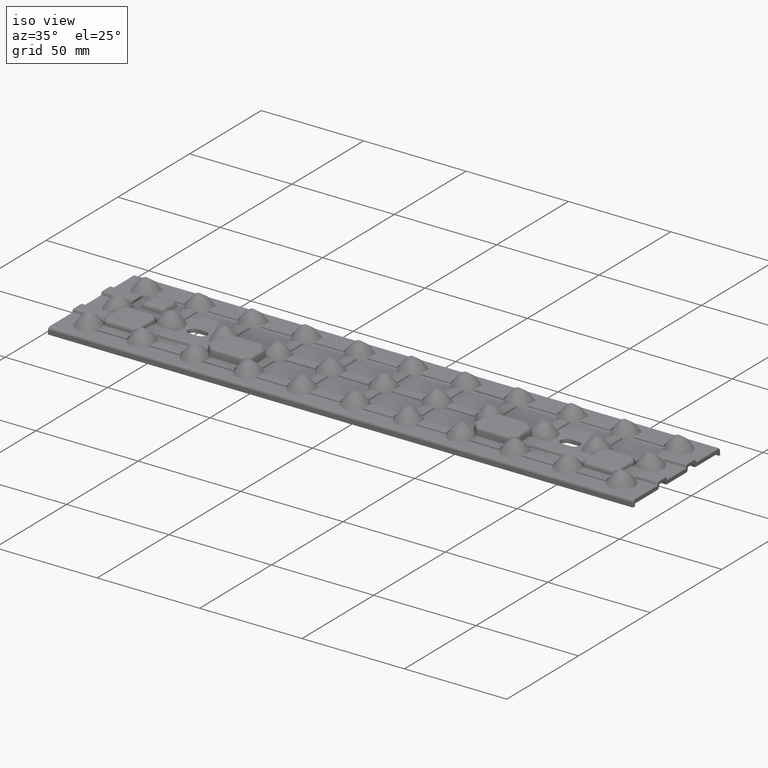
[diagram: clean part render]
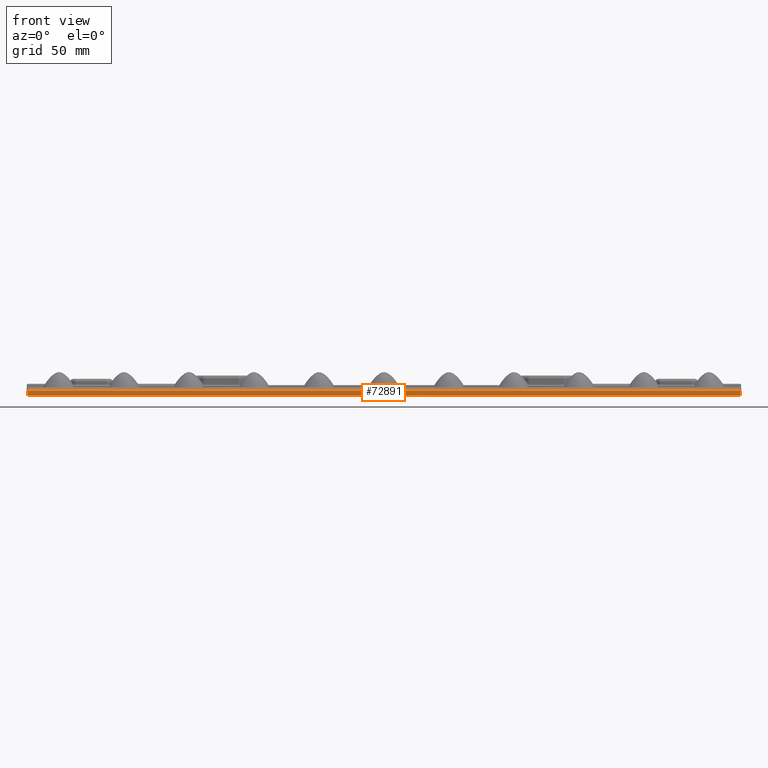
[diagram: tour spotlight — one face highlighted and labeled with its STEP entity id]
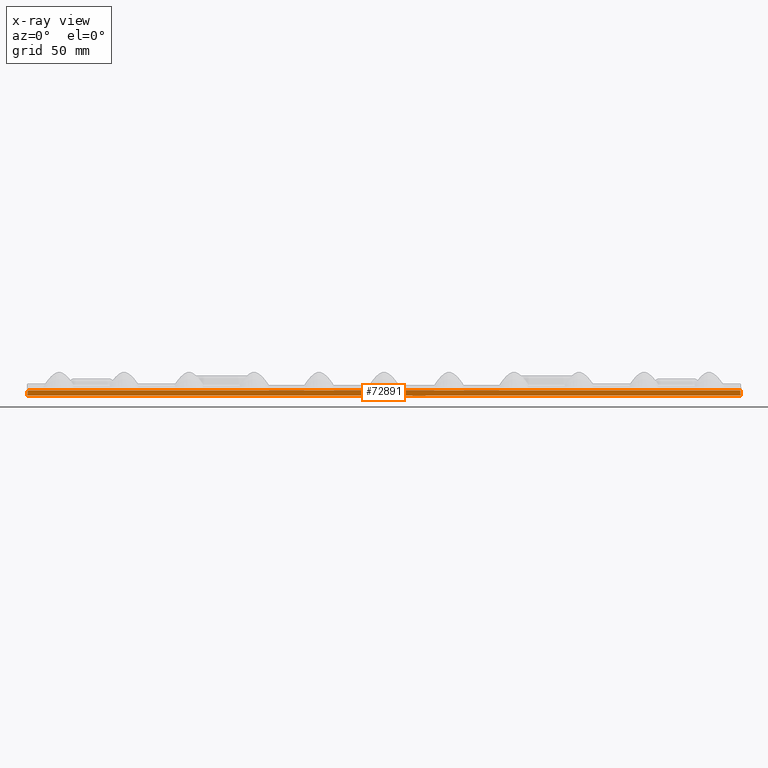
[diagram: x-ray of the same camera — body ghosted, this tour face saturated]
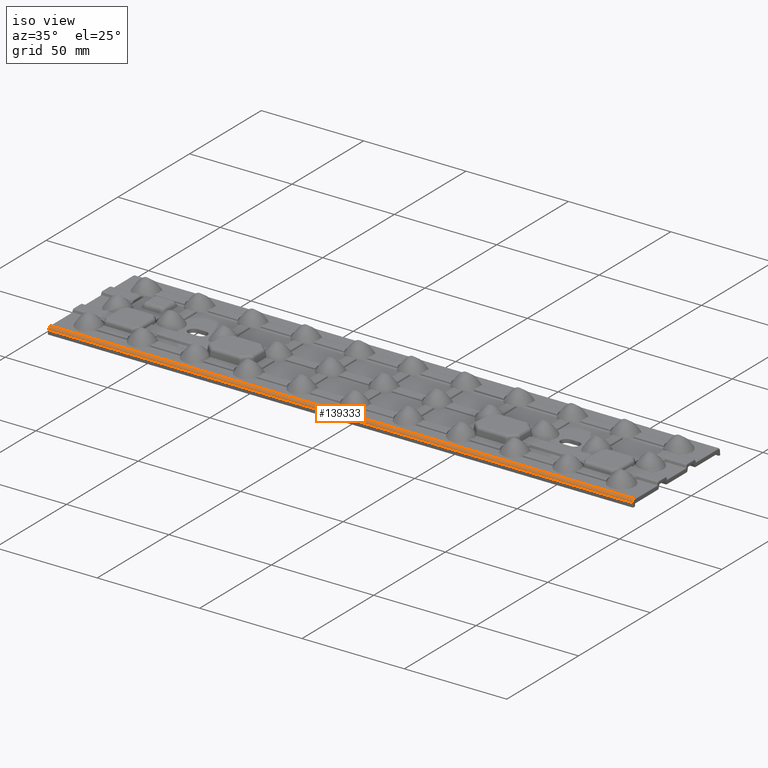
[diagram: tour spotlight — one face highlighted and labeled with its STEP entity id]
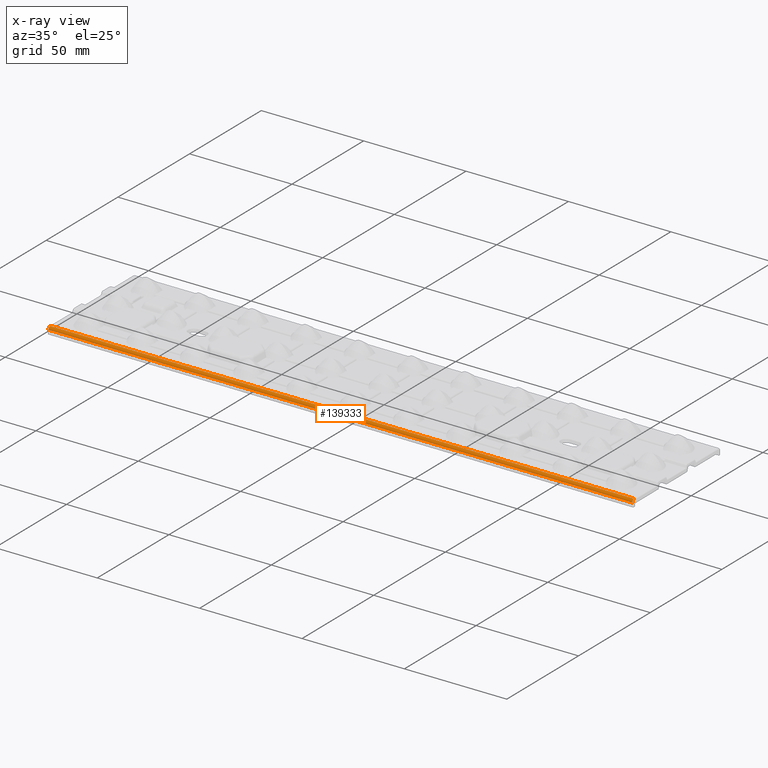
[diagram: x-ray of the same camera — body ghosted, this tour face saturated]
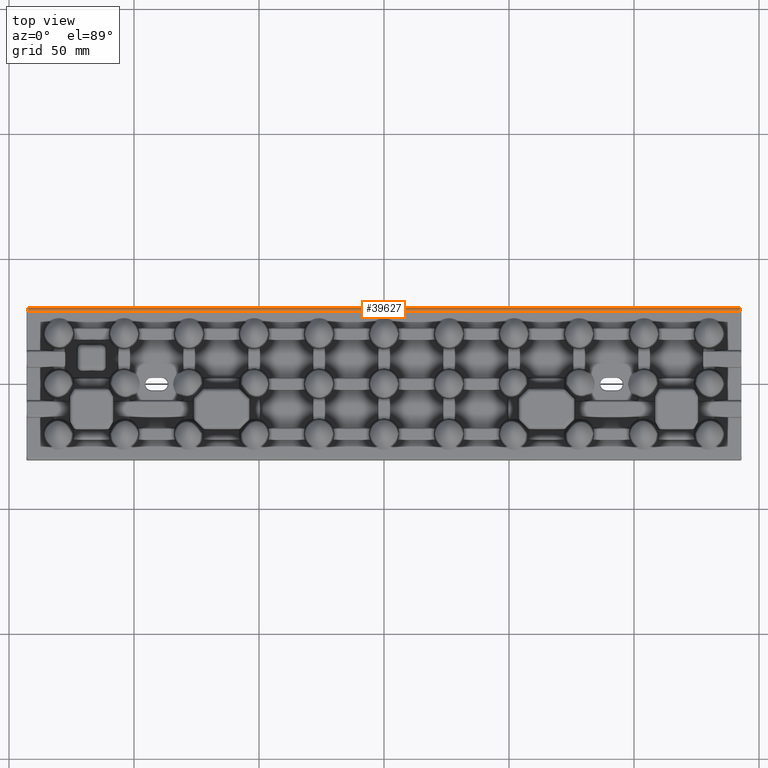
[diagram: tour spotlight — one face highlighted and labeled with its STEP entity id]
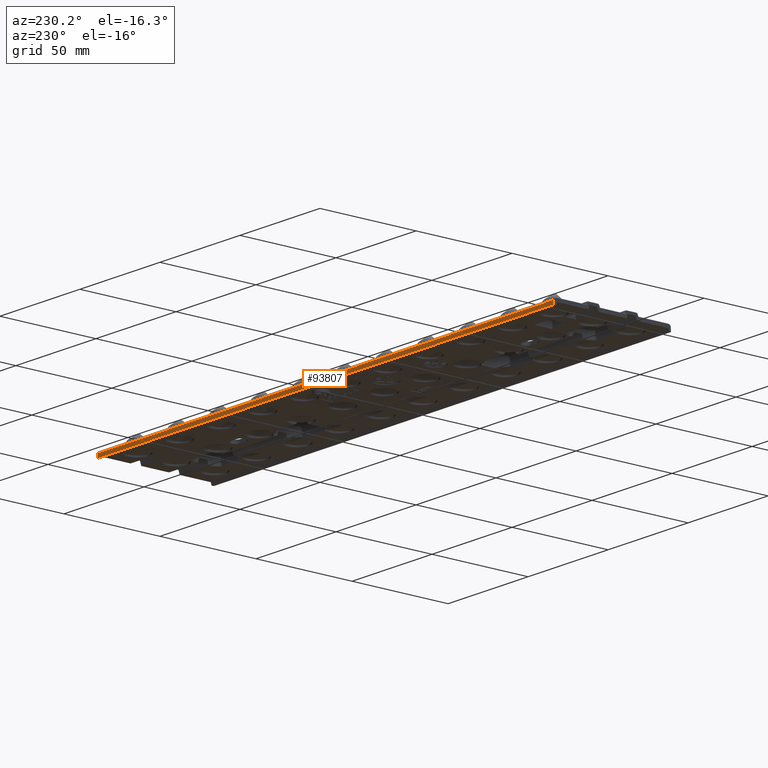
[diagram: tour spotlight — one face highlighted and labeled with its STEP entity id]
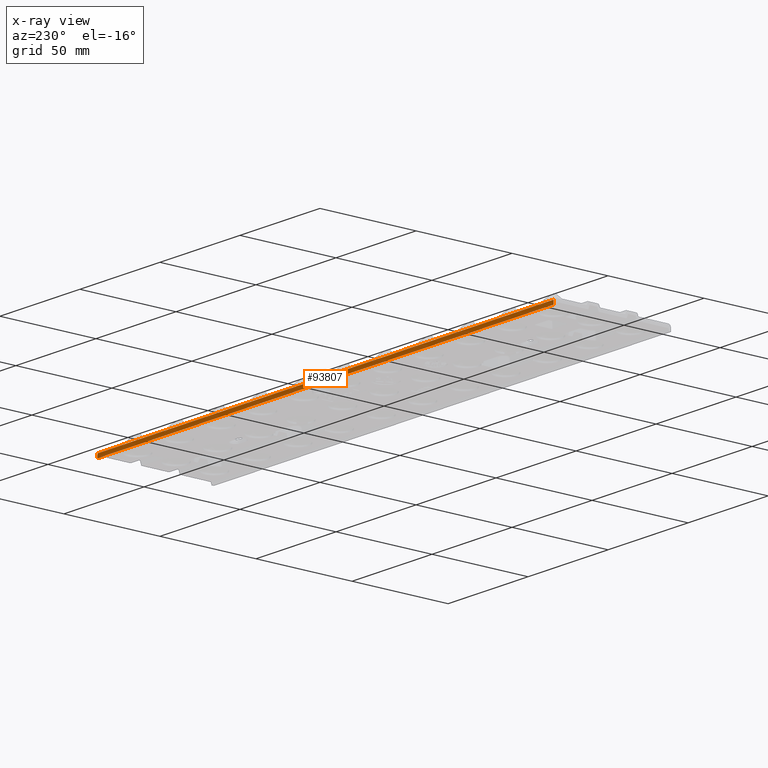
[diagram: x-ray of the same camera — body ghosted, this tour face saturated]
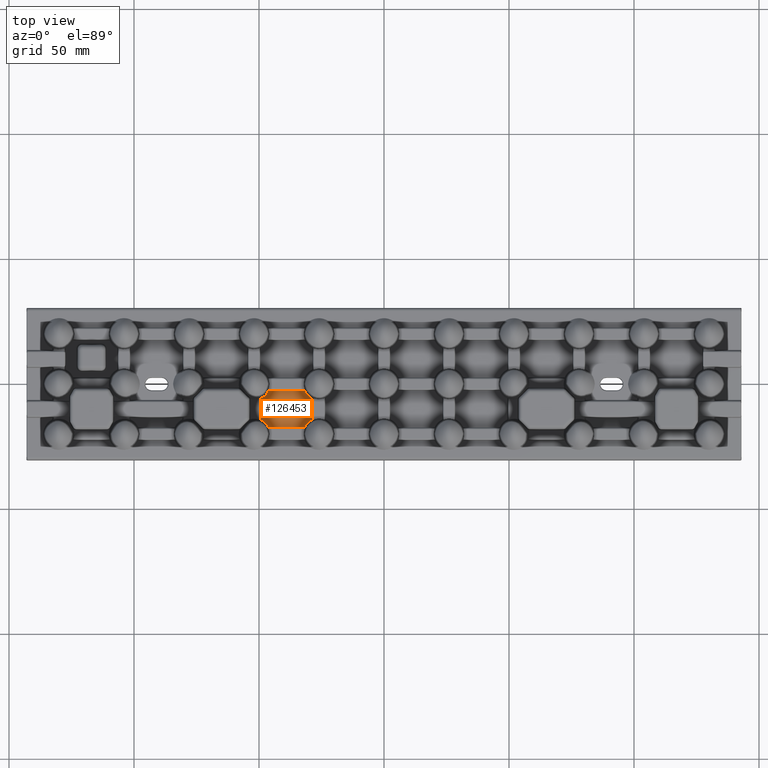
[diagram: tour spotlight — one face highlighted and labeled with its STEP entity id]
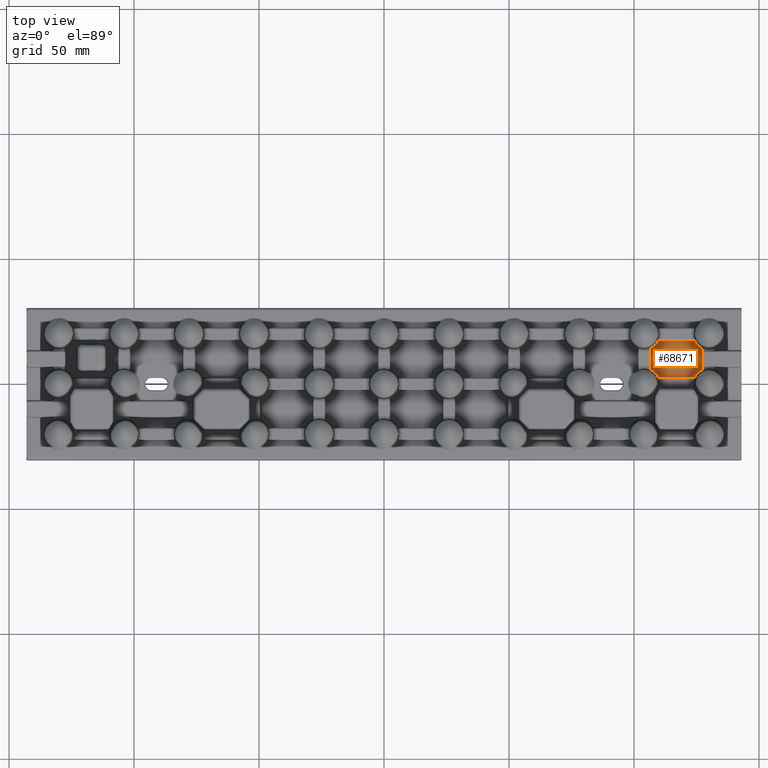
[diagram: tour spotlight — one face highlighted and labeled with its STEP entity id]
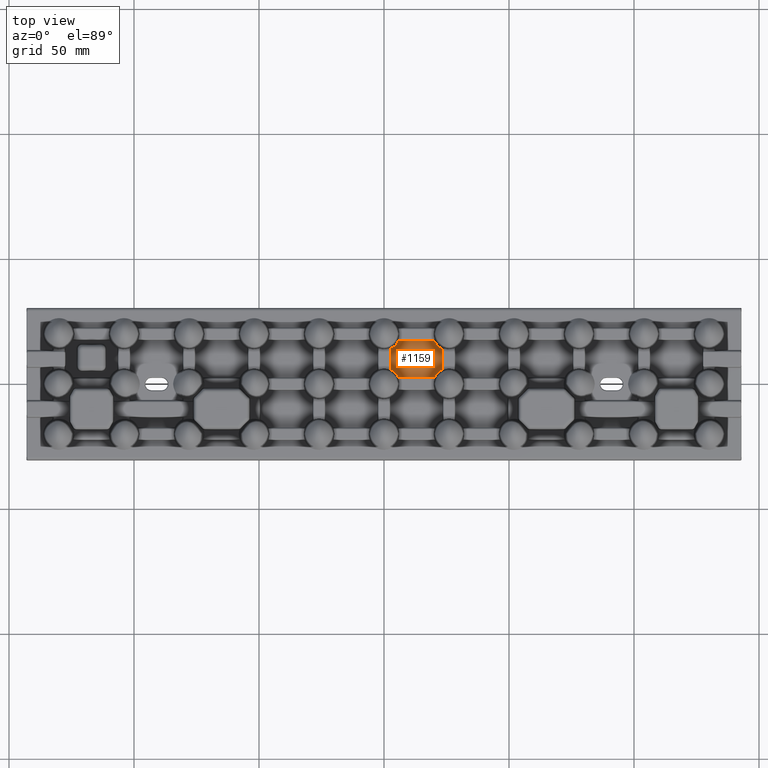
[diagram: tour spotlight — one face highlighted and labeled with its STEP entity id]
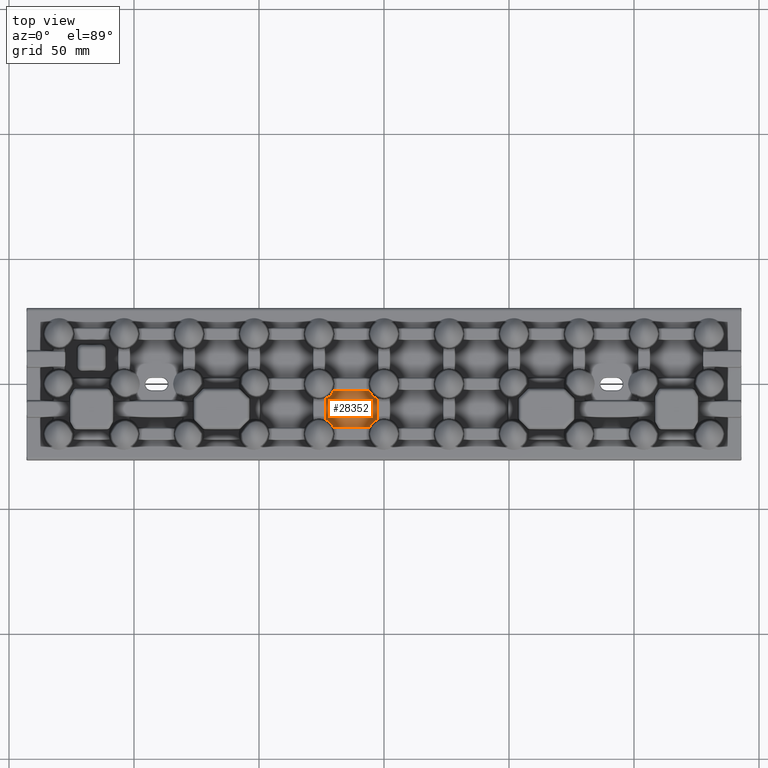
[diagram: tour spotlight — one face highlighted and labeled with its STEP entity id]
A machine part: a face-by-face anatomy tour. The part has 2967 B-rep faces; the first image is the clean iso view, then the 8 largest visible faces are spotlighted one at a time (largest first), each with its STEP entity span.

Face 1 — front view, entity #72891. An x-ray twin of the same camera follows (body ghosted, this face saturated) — the face is partly hidden behind the body. In plain terms, the highlighted planar face has unit normal (0, -0.9994, 0.0349).
Definition (entity closure, byte-faithful):
#523 = EDGE_CURVE ( 'NONE', #82481, #50635, #48362, .T. ) ;
#2130 = VERTEX_POINT ( 'NONE', #36720 ) ;
#2611 = EDGE_CURVE ( 'NONE', #2130, #54192, #137704, .T. ) ;
#4053 = EDGE_CURVE ( 'NONE', #54192, #50635, #37833, .T. ) ;
#5230 = DIRECTION ( 'NONE',  ( -1.000000000000000000, 0.0000000000000000000, 0.0000000000000000000 ) ) ;
#5881 = CARTESIAN_POINT ( 'NONE',  ( 0.0000000000000000000, -30.42688902594225900, 0.7936243708781265400 ) ) ;
#12005 = ORIENTED_EDGE ( 'NONE', *, *, #119690, .T. ) ;
#13071 = ORIENTED_EDGE ( 'NONE', *, *, #523, .F. ) ;
#22818 = LINE ( 'NONE', #125465, #51538 ) ;
#26660 = CARTESIAN_POINT ( 'NONE',  ( -142.4267714407498000, -30.32652777155741900, 3.667594671233610300 ) ) ;
#28562 = DIRECTION ( 'NONE',  ( 0.0000000000000000000, -0.9993908270190957600, 0.03489949670250105200 ) ) ;
#36720 = CARTESIAN_POINT ( 'NONE',  ( 142.5271326951346400, -30.42688902594225900, 0.7936243708781265400 ) ) ;
#37833 = LINE ( 'NONE', #26660, #123907 ) ;
#45823 = CARTESIAN_POINT ( 'NONE',  ( -142.5271326951346400, -30.42688902594225900, 0.7936243708781265400 ) ) ;
#48362 = LINE ( 'NONE', #86635, #127756 ) ;
#50635 = VERTEX_POINT ( 'NONE', #124074 ) ;
#51538 = VECTOR ( 'NONE', #114072, 1000.000000000000100 ) ;
#54192 = VERTEX_POINT ( 'NONE', #45823 ) ;
#68670 = ORIENTED_EDGE ( 'NONE', *, *, #4053, .T. ) ;
#72891 = ADVANCED_FACE ( 'NONE', ( #123529 ), #82717, .T. ) ;
#75564 = EDGE_LOOP ( 'NONE', ( #13071, #12005, #108320, #68670 ) ) ;
#76471 = CARTESIAN_POINT ( 'NONE',  ( 142.6002436691923400, -30.50000000000000400, -1.300000000000000000 ) ) ;
#80098 = VECTOR ( 'NONE', #5230, 1000.000000000000000 ) ;
#81563 = DIRECTION ( 'NONE',  ( -1.000000000000000000, 0.0000000000000000000, 0.0000000000000000000 ) ) ;
#82091 = AXIS2_PLACEMENT_3D ( 'NONE', #136658, #28562, #93612 ) ;
#82481 = VERTEX_POINT ( 'NONE', #76471 ) ;
#82717 = PLANE ( 'NONE',  #82091 ) ;
#86635 = CARTESIAN_POINT ( 'NONE',  ( 0.0000000000000000000, -30.50000000000000400, -1.300000000000000000 ) ) ;
#93612 = DIRECTION ( 'NONE',  ( 0.0000000000000000000, -0.03489949670250104600, -0.9993908270190956500 ) ) ;
#102075 = DIRECTION ( 'NONE',  ( -0.03487826274237469000, -0.03487826274237468300, -0.9987827659587181800 ) ) ;
#108320 = ORIENTED_EDGE ( 'NONE', *, *, #2611, .T. ) ;
#114072 = DIRECTION ( 'NONE',  ( -0.03487826274237469000, 0.03487826274237468300, 0.9987827659587181800 ) ) ;
#119690 = EDGE_CURVE ( 'NONE', #82481, #2130, #22818, .T. ) ;
#123529 = FACE_OUTER_BOUND ( 'NONE', #75564, .T. ) ;
#123907 = VECTOR ( 'NONE', #102075, 1000.000000000000100 ) ;
#124074 = CARTESIAN_POINT ( 'NONE',  ( -142.6002436691923400, -30.50000000000000400, -1.300000000000000000 ) ) ;
#125465 = CARTESIAN_POINT ( 'NONE',  ( 142.4267714407497700, -30.32652777155741900, 3.667594671233609400 ) ) ;
#127756 = VECTOR ( 'NONE', #81563, 1000.000000000000000 ) ;
#136658 = CARTESIAN_POINT ( 'NONE',  ( 0.0000000000000000000, -30.50000000000000400, -1.300000000000000000 ) ) ;
#137704 = LINE ( 'NONE', #5881, #80098 ) ;

Face 2 — iso view, entity #139333. An x-ray twin of the same camera follows (body ghosted, this face saturated) — the face is partly hidden behind the body. In plain terms, the highlighted cylindrical surface (edge-blend (fillet) strip) has radius 1.25 mm, axis along (-1, 0, 0).
Definition (entity closure, byte-faithful):
#151 = CARTESIAN_POINT ( 'NONE',  ( 142.4984859507544300, -29.17765049216839300, 2.000000000000000000 ) ) ;
#1784 = VERTEX_POINT ( 'NONE', #80443 ) ;
#2130 = VERTEX_POINT ( 'NONE', #36720 ) ;
#2611 = EDGE_CURVE ( 'NONE', #2130, #54192, #137704, .T. ) ;
#3353 = ORIENTED_EDGE ( 'NONE', *, *, #2611, .F. ) ;
#3506 = ORIENTED_EDGE ( 'NONE', *, *, #5338, .T. ) ;
#5230 = DIRECTION ( 'NONE',  ( -1.000000000000000000, 0.0000000000000000000, 0.0000000000000000000 ) ) ;
#5338 = EDGE_CURVE ( 'NONE', #2130, #37333, #133496, .T. ) ;
#5881 = CARTESIAN_POINT ( 'NONE',  ( 0.0000000000000000000, -30.42688902594225900, 0.7936243708781265400 ) ) ;
#15299 = VECTOR ( 'NONE', #82431, 1000.000000000000000 ) ;
#17002 =( BOUNDED_CURVE ( )  B_SPLINE_CURVE ( 3, ( #57909, #122572, #90474, #25856 ),
 .UNSPECIFIED., .F., .F. ) 
 B_SPLINE_CURVE_WITH_KNOTS ( ( 4, 4 ),
 ( 3.141592653589793100, 4.677482395344802600 ),
 .UNSPECIFIED. ) 
 CURVE ( )  GEOMETRIC_REPRESENTATION_ITEM ( )  RATIONAL_B_SPLINE_CURVE ( ( 1.000000000000000000, 0.8128932002257675000, 0.8128932002257675000, 1.000000000000000000 ) ) 
 REPRESENTATION_ITEM ( '' )  );
#22136 = LINE ( 'NONE', #28743, #15299 ) ;
#23621 = CARTESIAN_POINT ( 'NONE',  ( 142.5102327765253000, -30.40203620445798200, 1.505316061697148400 ) ) ;
#25856 = CARTESIAN_POINT ( 'NONE',  ( -142.5271326951346400, -30.42688902594225900, 0.7936243708781265400 ) ) ;
#28743 = CARTESIAN_POINT ( 'NONE',  ( 0.0000000000000000000, -29.17765049216839300, 2.000000000000000000 ) ) ;
#34485 = CARTESIAN_POINT ( 'NONE',  ( 142.4984859507544300, -29.88977599060007200, 2.000000000000000000 ) ) ;
#36720 = CARTESIAN_POINT ( 'NONE',  ( 142.5271326951346400, -30.42688902594225900, 0.7936243708781265400 ) ) ;
#37333 = VERTEX_POINT ( 'NONE', #151 ) ;
#43669 = CARTESIAN_POINT ( 'NONE',  ( 0.0000000000000000000, -29.17765049216839300, 0.7500000000000002200 ) ) ;
#45823 = CARTESIAN_POINT ( 'NONE',  ( -142.5271326951346400, -30.42688902594225900, 0.7936243708781265400 ) ) ;
#51450 = EDGE_LOOP ( 'NONE', ( #3353, #3506, #103177, #139008 ) ) ;
#54192 = VERTEX_POINT ( 'NONE', #45823 ) ;
#57909 = CARTESIAN_POINT ( 'NONE',  ( -142.4984859507544300, -29.17765049216839300, 2.000000000000000000 ) ) ;
#60449 = FACE_OUTER_BOUND ( 'NONE', #51450, .T. ) ;
#77346 = CARTESIAN_POINT ( 'NONE',  ( 142.5271326951346400, -30.42688902594225900, 0.7936243708781265400 ) ) ;
#80098 = VECTOR ( 'NONE', #5230, 1000.000000000000000 ) ;
#80443 = CARTESIAN_POINT ( 'NONE',  ( -142.4984859507544300, -29.17765049216839300, 2.000000000000000000 ) ) ;
#80935 = AXIS2_PLACEMENT_3D ( 'NONE', #43669, #108224, #97397 ) ;
#82431 = DIRECTION ( 'NONE',  ( 1.000000000000000000, -0.0000000000000000000, 0.0000000000000000000 ) ) ;
#90474 = CARTESIAN_POINT ( 'NONE',  ( -142.5102327765253000, -30.40203620445798200, 1.505316061697149000 ) ) ;
#96329 = EDGE_CURVE ( 'NONE', #1784, #54192, #17002, .T. ) ;
#97397 = DIRECTION ( 'NONE',  ( 0.0000000000000000000, 0.0000000000000000000, 1.000000000000000000 ) ) ;
#103177 = ORIENTED_EDGE ( 'NONE', *, *, #125096, .F. ) ;
#108224 = DIRECTION ( 'NONE',  ( -1.000000000000000000, 0.0000000000000000000, 0.0000000000000000000 ) ) ;
#109850 = CARTESIAN_POINT ( 'NONE',  ( 142.4984859507544300, -29.17765049216839300, 2.000000000000000000 ) ) ;
#114435 = CYLINDRICAL_SURFACE ( 'NONE', #80935, 1.249999999999999800 ) ;
#122572 = CARTESIAN_POINT ( 'NONE',  ( -142.4984859507544300, -29.88977599060007200, 2.000000000000000000 ) ) ;
#125096 = EDGE_CURVE ( 'NONE', #1784, #37333, #22136, .T. ) ;
#133496 =( BOUNDED_CURVE ( )  B_SPLINE_CURVE ( 3, ( #77346, #23621, #34485, #109850 ),
 .UNSPECIFIED., .F., .F. ) 
 B_SPLINE_CURVE_WITH_KNOTS ( ( 4, 4 ),
 ( 4.747295565424576800, 6.283185307179586200 ),
 .UNSPECIFIED. ) 
 CURVE ( )  GEOMETRIC_REPRESENTATION_ITEM ( )  RATIONAL_B_SPLINE_CURVE ( ( 1.000000000000000000, 0.8128932002257675000, 0.8128932002257675000, 1.000000000000000000 ) ) 
 REPRESENTATION_ITEM ( '' )  );
#137704 = LINE ( 'NONE', #5881, #80098 ) ;
#139008 = ORIENTED_EDGE ( 'NONE', *, *, #96329, .T. ) ;
#139333 = ADVANCED_FACE ( 'NONE', ( #60449 ), #114435, .T. ) ;

Face 3 — top view, entity #39627. In plain terms, the highlighted cylindrical surface (edge-blend (fillet) strip) has radius 1.25 mm, axis along (-1, 0, 0).
Definition (entity closure, byte-faithful):
#8897 = VERTEX_POINT ( 'NONE', #18110 ) ;
#10975 = DIRECTION ( 'NONE',  ( -1.000000000000000000, 0.0000000000000000000, -0.0000000000000000000 ) ) ;
#11187 = CARTESIAN_POINT ( 'NONE',  ( -142.4984859507544300, 29.17765049216839300, 2.000000000000000000 ) ) ;
#12075 = CARTESIAN_POINT ( 'NONE',  ( -142.4984859507544300, 29.17765049216839300, 2.000000000000000000 ) ) ;
#13903 = DIRECTION ( 'NONE',  ( -1.000000000000000000, 0.0000000000000000000, 0.0000000000000000000 ) ) ;
#15618 = ORIENTED_EDGE ( 'NONE', *, *, #114862, .F. ) ;
#18110 = CARTESIAN_POINT ( 'NONE',  ( 142.4984859507544300, 29.17765049216839300, 2.000000000000000000 ) ) ;
#20547 = CARTESIAN_POINT ( 'NONE',  ( 142.8847614606772000, 30.42688902594225900, 0.7936243708781263200 ) ) ;
#22241 = EDGE_CURVE ( 'NONE', #67690, #100428, #29314, .T. ) ;
#29314 =( BOUNDED_CURVE ( )  B_SPLINE_CURVE ( 3, ( #76752, #65864, #130639, #12075 ),
 .UNSPECIFIED., .F., .F. ) 
 B_SPLINE_CURVE_WITH_KNOTS ( ( 4, 4 ),
 ( 1.605702911834784100, 3.141592653589793100 ),
 .UNSPECIFIED. ) 
 CURVE ( )  GEOMETRIC_REPRESENTATION_ITEM ( )  RATIONAL_B_SPLINE_CURVE ( ( 1.000000000000000000, 0.8128932002257676100, 0.8128932002257676100, 1.000000000000000000 ) ) 
 REPRESENTATION_ITEM ( '' )  );
#29613 = VECTOR ( 'NONE', #117708, 1000.000000000000000 ) ;
#32771 = CYLINDRICAL_SURFACE ( 'NONE', #84822, 1.250000000000000000 ) ;
#39627 = ADVANCED_FACE ( 'NONE', ( #93455 ), #32771, .T. ) ;
#41592 = EDGE_CURVE ( 'NONE', #67690, #81570, #86927, .T. ) ;
#41761 = CARTESIAN_POINT ( 'NONE',  ( 142.4984859507544300, 29.17765049216839300, 2.000000000000000000 ) ) ;
#42212 = CARTESIAN_POINT ( 'NONE',  ( 142.4984859507544300, 29.88977599060007200, 2.000000000000000000 ) ) ;
#53080 = CARTESIAN_POINT ( 'NONE',  ( 142.5102327765253000, 30.40203620445798200, 1.505316061697148600 ) ) ;
#58747 = CARTESIAN_POINT ( 'NONE',  ( -142.5271326951346100, 30.42688902594225900, 0.7936243708781263200 ) ) ;
#64820 = ORIENTED_EDGE ( 'NONE', *, *, #41592, .F. ) ;
#65864 = CARTESIAN_POINT ( 'NONE',  ( -142.5102327765253600, 30.40203620445797500, 1.505316061697148800 ) ) ;
#67690 = VERTEX_POINT ( 'NONE', #58747 ) ;
#68276 = ORIENTED_EDGE ( 'NONE', *, *, #22241, .T. ) ;
#76752 = CARTESIAN_POINT ( 'NONE',  ( -142.5271326951346100, 30.42688902594225900, 0.7936243708781263200 ) ) ;
#81570 = VERTEX_POINT ( 'NONE', #103493 ) ;
#81626 = EDGE_LOOP ( 'NONE', ( #15618, #130687, #64820, #68276 ) ) ;
#82094 = VECTOR ( 'NONE', #10975, 1000.000000000000000 ) ;
#84822 = AXIS2_PLACEMENT_3D ( 'NONE', #89423, #13903, #131501 ) ;
#86927 = LINE ( 'NONE', #20547, #29613 ) ;
#88591 = EDGE_CURVE ( 'NONE', #8897, #81570, #120277, .T. ) ;
#89423 = CARTESIAN_POINT ( 'NONE',  ( 0.0000000000000000000, 29.17765049216839300, 0.7500000000000000000 ) ) ;
#93455 = FACE_OUTER_BOUND ( 'NONE', #81626, .T. ) ;
#100428 = VERTEX_POINT ( 'NONE', #11187 ) ;
#103493 = CARTESIAN_POINT ( 'NONE',  ( 142.5271326951346400, 30.42688902594225900, 0.7936243708781263200 ) ) ;
#107700 = CARTESIAN_POINT ( 'NONE',  ( -142.8847614606772000, 29.17765049216839300, 2.000000000000000000 ) ) ;
#110797 = LINE ( 'NONE', #107700, #82094 ) ;
#114862 = EDGE_CURVE ( 'NONE', #8897, #100428, #110797, .T. ) ;
#117708 = DIRECTION ( 'NONE',  ( 1.000000000000000000, -0.0000000000000000000, -0.0000000000000000000 ) ) ;
#120277 =( BOUNDED_CURVE ( )  B_SPLINE_CURVE ( 3, ( #41761, #42212, #53080, #128587 ),
 .UNSPECIFIED., .F., .F. ) 
 B_SPLINE_CURVE_WITH_KNOTS ( ( 4, 4 ),
 ( 0.0000000000000000000, 1.535889741755009700 ),
 .UNSPECIFIED. ) 
 CURVE ( )  GEOMETRIC_REPRESENTATION_ITEM ( )  RATIONAL_B_SPLINE_CURVE ( ( 1.000000000000000000, 0.8128932002257675000, 0.8128932002257675000, 1.000000000000000000 ) ) 
 REPRESENTATION_ITEM ( '' )  );
#128587 = CARTESIAN_POINT ( 'NONE',  ( 142.5271326951346400, 30.42688902594225900, 0.7936243708781263200 ) ) ;
#130639 = CARTESIAN_POINT ( 'NONE',  ( -142.4984859507544600, 29.88977599060007900, 2.000000000000000000 ) ) ;
#130687 = ORIENTED_EDGE ( 'NONE', *, *, #88591, .T. ) ;
#131501 = DIRECTION ( 'NONE',  ( 0.0000000000000000000, 0.0000000000000000000, 1.000000000000000000 ) ) ;

Face 4 — auxiliary view, entity #93807. An x-ray twin of the same camera follows (body ghosted, this face saturated) — the face is partly hidden behind the body. In plain terms, the highlighted planar face has unit normal (-0, 0.9994, 0.0349).
Definition (entity closure, byte-faithful):
#17678 = LINE ( 'NONE', #57780, #64978 ) ;
#20547 = CARTESIAN_POINT ( 'NONE',  ( 142.8847614606772000, 30.42688902594225900, 0.7936243708781263200 ) ) ;
#29613 = VECTOR ( 'NONE', #117708, 1000.000000000000000 ) ;
#33178 = ORIENTED_EDGE ( 'NONE', *, *, #73822, .T. ) ;
#35092 = VERTEX_POINT ( 'NONE', #38563 ) ;
#38563 = CARTESIAN_POINT ( 'NONE',  ( 142.6002436691923400, 30.50000000000000400, -1.300000000000000000 ) ) ;
#40729 = LINE ( 'NONE', #101649, #123396 ) ;
#40929 = CARTESIAN_POINT ( 'NONE',  ( 0.0000000000000000000, 30.50000000000000400, -1.300000000000000000 ) ) ;
#41592 = EDGE_CURVE ( 'NONE', #67690, #81570, #86927, .T. ) ;
#42595 = ORIENTED_EDGE ( 'NONE', *, *, #41592, .T. ) ;
#46651 = FACE_OUTER_BOUND ( 'NONE', #117690, .T. ) ;
#52660 = CARTESIAN_POINT ( 'NONE',  ( -142.5276189959975000, 30.42737532680511200, 0.7796985361977957200 ) ) ;
#57780 = CARTESIAN_POINT ( 'NONE',  ( 0.0000000000000000000, 30.50000000000000400, -1.300000000000000000 ) ) ;
#58073 = EDGE_CURVE ( 'NONE', #35092, #122041, #17678, .T. ) ;
#58747 = CARTESIAN_POINT ( 'NONE',  ( -142.5271326951346100, 30.42688902594225900, 0.7936243708781263200 ) ) ;
#64978 = VECTOR ( 'NONE', #132923, 1000.000000000000000 ) ;
#67690 = VERTEX_POINT ( 'NONE', #58747 ) ;
#70549 = LINE ( 'NONE', #52660, #102638 ) ;
#73452 = DIRECTION ( 'NONE',  ( 0.0000000000000000000, -0.03489949670250104600, 0.9993908270190956500 ) ) ;
#73822 = EDGE_CURVE ( 'NONE', #81570, #35092, #40729, .T. ) ;
#81570 = VERTEX_POINT ( 'NONE', #103493 ) ;
#83801 = PLANE ( 'NONE',  #87911 ) ;
#86927 = LINE ( 'NONE', #20547, #29613 ) ;
#87911 = AXIS2_PLACEMENT_3D ( 'NONE', #40929, #138194, #73452 ) ;
#93203 = DIRECTION ( 'NONE',  ( 0.03487826274237469000, -0.03487826274237468300, 0.9987827659587181800 ) ) ;
#93227 = ORIENTED_EDGE ( 'NONE', *, *, #58073, .T. ) ;
#93807 = ADVANCED_FACE ( 'NONE', ( #46651 ), #83801, .T. ) ;
#95519 = ORIENTED_EDGE ( 'NONE', *, *, #139219, .T. ) ;
#101649 = CARTESIAN_POINT ( 'NONE',  ( 142.6007299700552300, 30.50048630086285700, -1.313925834680328200 ) ) ;
#102638 = VECTOR ( 'NONE', #93203, 1000.000000000000100 ) ;
#103493 = CARTESIAN_POINT ( 'NONE',  ( 142.5271326951346400, 30.42688902594225900, 0.7936243708781263200 ) ) ;
#104905 = CARTESIAN_POINT ( 'NONE',  ( -142.6002436691923400, 30.50000000000000400, -1.300000000000000000 ) ) ;
#112521 = DIRECTION ( 'NONE',  ( 0.03487826274237469000, 0.03487826274237468300, -0.9987827659587181800 ) ) ;
#117690 = EDGE_LOOP ( 'NONE', ( #42595, #33178, #93227, #95519 ) ) ;
#117708 = DIRECTION ( 'NONE',  ( 1.000000000000000000, -0.0000000000000000000, -0.0000000000000000000 ) ) ;
#122041 = VERTEX_POINT ( 'NONE', #104905 ) ;
#123396 = VECTOR ( 'NONE', #112521, 1000.000000000000100 ) ;
#132923 = DIRECTION ( 'NONE',  ( -1.000000000000000000, -0.0000000000000000000, -0.0000000000000000000 ) ) ;
#138194 = DIRECTION ( 'NONE',  ( -0.0000000000000000000, 0.9993908270190957600, 0.03489949670250105200 ) ) ;
#139219 = EDGE_CURVE ( 'NONE', #122041, #67690, #70549, .T. ) ;

Face 5 — top view, entity #126453. In plain terms, the highlighted planar face has unit normal (0, 0, 1).
Definition (entity closure, byte-faithful):
#6493 = CARTESIAN_POINT ( 'NONE',  ( -30.97238319668522200, -16.00731512479869100, 1.999999999999998700 ) ) ;
#8357 = LINE ( 'NONE', #52810, #119803 ) ;
#9869 = PLANE ( 'NONE',  #48365 ) ;
#10810 = DIRECTION ( 'NONE',  ( 0.0000000000000000000, 0.0000000000000000000, 1.000000000000000000 ) ) ;
#13237 = CARTESIAN_POINT ( 'NONE',  ( -46.46046599668604000, -16.92557939520335700, 2.000000000000000400 ) ) ;
#14307 = VECTOR ( 'NONE', #99274, 1000.000000000000000 ) ;
#14543 = B_SPLINE_CURVE_WITH_KNOTS ( 'NONE', 3,
 ( #38256, #16471, #114107, #49548, #125017, #60344, #135990, #71154, #6493, #82023, #17410, #92900 ),
 .UNSPECIFIED., .F., .F.,
 ( 4, 2, 2, 2, 2, 4 ),
 ( 1.734723475976807100E-018, 0.001074086461339490600, 0.001611129692009230700, 0.002148172922678970800, 0.003222259384018451000, 0.004296345845357926000 ),
 .UNSPECIFIED. ) ;
#15388 = CARTESIAN_POINT ( 'NONE',  ( -49.25857780629812800, -5.768207916009355800, 2.000000000000000000 ) ) ;
#16471 = CARTESIAN_POINT ( 'NONE',  ( -29.07217704737289300, -14.38190494159814600, 1.999999999999999100 ) ) ;
#17410 = CARTESIAN_POINT ( 'NONE',  ( -31.53985887620523000, -16.92631523808890700, 1.999999999999999600 ) ) ;
#17757 = CARTESIAN_POINT ( 'NONE',  ( -31.68591838113543000, -2.741422193701772000, 2.000000000000000000 ) ) ;
#19537 = B_SPLINE_CURVE_WITH_KNOTS ( 'NONE', 3,
 ( #73791, #138546, #95467, #30922, #106283, #41729, #117167, #52568, #128103, #63426, #139021, #74234 ),
 .UNSPECIFIED., .F., .F.,
 ( 4, 2, 2, 2, 2, 4 ),
 ( 8.673617379884035500E-019, 0.001074085383375056500, 0.001611128075062584700, 0.002148170766750112200, 0.003222256150125155500, 0.004296341533500200100 ),
 .UNSPECIFIED. ) ;
#24161 = CARTESIAN_POINT ( 'NONE',  ( -46.31408250283066500, -17.25857780629827700, 2.000000000000000000 ) ) ;
#29647 = CARTESIAN_POINT ( 'NONE',  ( -30.97383262636456900, -3.990758746549348100, 2.000000000000000000 ) ) ;
#30922 = CARTESIAN_POINT ( 'NONE',  ( -48.17586731011864000, -5.132195336541097500, 2.000000000000000400 ) ) ;
#32211 = ORIENTED_EDGE ( 'NONE', *, *, #48400, .T. ) ;
#32338 = ORIENTED_EDGE ( 'NONE', *, *, #54341, .F. ) ;
#38256 = CARTESIAN_POINT ( 'NONE',  ( -28.74142219370183700, -14.23178765772975400, 2.000000000000000000 ) ) ;
#40459 = CARTESIAN_POINT ( 'NONE',  ( -29.99092449051953900, -5.058263676520877700, 2.000000000000000400 ) ) ;
#40734 = CARTESIAN_POINT ( 'NONE',  ( -47.02616910457737000, -16.00924355256731200, 2.000000000000000900 ) ) ;
#40949 = CARTESIAN_POINT ( 'NONE',  ( -28.74142219370184000, -5.564171097297352400, 2.000000000000000000 ) ) ;
#41729 = CARTESIAN_POINT ( 'NONE',  ( -47.76009721647142200, -4.788400185583095800, 2.000000000000071900 ) ) ;
#42853 = VERTEX_POINT ( 'NONE', #87952 ) ;
#43074 = LINE ( 'NONE', #56416, #14307 ) ;
#43352 = DIRECTION ( 'NONE',  ( -1.000000000000000000, 2.271661694731551500E-016, -0.0000000000000000000 ) ) ;
#43937 = ORIENTED_EDGE ( 'NONE', *, *, #95662, .F. ) ;
#44255 = VERTEX_POINT ( 'NONE', #95808 ) ;
#48365 = AXIS2_PLACEMENT_3D ( 'NONE', #137929, #10810, #86330 ) ;
#48400 = EDGE_CURVE ( 'NONE', #49114, #139738, #8357, .T. ) ;
#49114 = VERTEX_POINT ( 'NONE', #124279 ) ;
#49548 = CARTESIAN_POINT ( 'NONE',  ( -29.82413404654683500, -14.86780033483212900, 1.999999999999999600 ) ) ;
#51290 = CARTESIAN_POINT ( 'NONE',  ( -28.74142219370184000, -5.768212342269608300, 2.000000000000000000 ) ) ;
#51589 = CARTESIAN_POINT ( 'NONE',  ( -48.00907709018032000, -14.94174063425509900, 2.000000000000000000 ) ) ;
#52568 = CARTESIAN_POINT ( 'NONE',  ( -47.25053484692833200, -4.273470592468900300, 2.000000000000068800 ) ) ;
#52810 = CARTESIAN_POINT ( 'NONE',  ( -31.56417109729744300, -17.25857780629828000, 2.000000000000000000 ) ) ;
#53220 = LINE ( 'NONE', #40949, #110507 ) ;
#54169 = ORIENTED_EDGE ( 'NONE', *, *, #92548, .F. ) ;
#54341 = EDGE_CURVE ( 'NONE', #44255, #139738, #14543, .T. ) ;
#54640 = LINE ( 'NONE', #75379, #58019 ) ;
#56416 = CARTESIAN_POINT ( 'NONE',  ( -49.25857780629812800, -14.43582890270258700, 2.000000000000000000 ) ) ;
#57653 = EDGE_CURVE ( 'NONE', #44255, #42853, #53220, .T. ) ;
#58019 = VECTOR ( 'NONE', #43352, 1000.000000000000000 ) ;
#58857 = CARTESIAN_POINT ( 'NONE',  ( -31.68591838113543000, -2.741422193701772000, 2.000000000000000000 ) ) ;
#60344 = CARTESIAN_POINT ( 'NONE',  ( -30.23990447094082200, -15.21159604906558500, 2.000000000000071500 ) ) ;
#61148 = EDGE_CURVE ( 'NONE', #79543, #128195, #19537, .T. ) ;
#62366 = CARTESIAN_POINT ( 'NONE',  ( -49.25857780629812800, -14.23179208399005400, 2.000000000000000000 ) ) ;
#63426 = CARTESIAN_POINT ( 'NONE',  ( -46.63257928951646400, -3.393805111211583900, 2.000000000000000900 ) ) ;
#68180 = CARTESIAN_POINT ( 'NONE',  ( -49.25857780629812800, -14.23179208399005400, 2.000000000000000000 ) ) ;
#68219 = EDGE_LOOP ( 'NONE', ( #43937, #32211, #32338, #135394, #54169, #125107, #103223, #94889 ) ) ;
#68920 = B_SPLINE_CURVE_WITH_KNOTS ( 'NONE', 3,
 ( #24161, #13237, #105279, #40734, #116147, #51589, #127083, #62366 ),
 .UNSPECIFIED., .F., .F.,
 ( 4, 2, 2, 4 ),
 ( 3.469446951953614200E-018, 0.001076539212269840600, 0.002153078424539677800, 0.004306156849079355700 ),
 .UNSPECIFIED. ) ;
#70867 = VERTEX_POINT ( 'NONE', #68180 ) ;
#71154 = CARTESIAN_POINT ( 'NONE',  ( -30.74946689594155600, -15.72652648526143300, 2.000000000000070600 ) ) ;
#72463 = CARTESIAN_POINT ( 'NONE',  ( -31.53953516320198600, -3.074421158446671400, 2.000000000000000000 ) ) ;
#73791 = CARTESIAN_POINT ( 'NONE',  ( -49.25857780629812800, -5.768207916009355800, 2.000000000000000000 ) ) ;
#74234 = CARTESIAN_POINT ( 'NONE',  ( -46.31408250283166000, -2.741422193701768400, 2.000000000000000000 ) ) ;
#75379 = CARTESIAN_POINT ( 'NONE',  ( -46.43582890270247500, -2.741422193701768400, 2.000000000000000000 ) ) ;
#79543 = VERTEX_POINT ( 'NONE', #15388 ) ;
#82023 = CARTESIAN_POINT ( 'NONE',  ( -31.36742206372730700, -16.60619369257983300, 1.999999999999998700 ) ) ;
#84273 = EDGE_CURVE ( 'NONE', #79543, #70867, #43074, .T. ) ;
#86330 = DIRECTION ( 'NONE',  ( -1.000000000000000000, 0.0000000000000000000, 0.0000000000000000000 ) ) ;
#87218 = VERTEX_POINT ( 'NONE', #58857 ) ;
#87952 = CARTESIAN_POINT ( 'NONE',  ( -28.74142219370184000, -5.768212342269608300, 2.000000000000000000 ) ) ;
#90730 = B_SPLINE_CURVE_WITH_KNOTS ( 'NONE', 3,
 ( #17757, #72463, #94160, #29647, #105005, #40459, #115876, #51290 ),
 .UNSPECIFIED., .F., .F.,
 ( 4, 2, 2, 4 ),
 ( 3.469446951953614200E-018, 0.001076540399725369700, 0.002153080799450736000, 0.004306161598901459000 ),
 .UNSPECIFIED. ) ;
#92065 = CARTESIAN_POINT ( 'NONE',  ( -46.31408250283166000, -2.741422193701768400, 2.000000000000000000 ) ) ;
#92548 = EDGE_CURVE ( 'NONE', #87218, #42853, #90730, .T. ) ;
#92900 = CARTESIAN_POINT ( 'NONE',  ( -31.68591838113653100, -17.25857780629828000, 2.000000000000000000 ) ) ;
#94160 = CARTESIAN_POINT ( 'NONE',  ( -31.36876764847786000, -3.391493271073595700, 2.000000000000000000 ) ) ;
#94889 = ORIENTED_EDGE ( 'NONE', *, *, #84273, .T. ) ;
#95467 = CARTESIAN_POINT ( 'NONE',  ( -48.61561224644827200, -5.440601997758082400, 1.999999999999999600 ) ) ;
#95662 = EDGE_CURVE ( 'NONE', #49114, #70867, #68920, .T. ) ;
#95808 = CARTESIAN_POINT ( 'NONE',  ( -28.74142219370183700, -14.23178765772975400, 2.000000000000000000 ) ) ;
#99274 = DIRECTION ( 'NONE',  ( -0.0000000000000000000, -1.000000000000000000, 0.0000000000000000000 ) ) ;
#102856 = FACE_OUTER_BOUND ( 'NONE', #68219, .T. ) ;
#103070 = EDGE_CURVE ( 'NONE', #87218, #128195, #54640, .T. ) ;
#103223 = ORIENTED_EDGE ( 'NONE', *, *, #61148, .F. ) ;
#105005 = CARTESIAN_POINT ( 'NONE',  ( -30.74879111460451900, -4.274456355544143300, 1.999999999999999600 ) ) ;
#105279 = CARTESIAN_POINT ( 'NONE',  ( -46.63123373986549300, -16.60850785381537900, 2.000000000000001300 ) ) ;
#106283 = CARTESIAN_POINT ( 'NONE',  ( -48.03405374581422600, -5.022355105805168300, 2.000000000000071900 ) ) ;
#110507 = VECTOR ( 'NONE', #138213, 1000.000000000000000 ) ;
#114107 = CARTESIAN_POINT ( 'NONE',  ( -29.38438863959082100, -14.55939339204715600, 1.999999999999998700 ) ) ;
#115876 = CARTESIAN_POINT ( 'NONE',  ( -29.40465578554646300, -5.467195367694484900, 2.000000000000001300 ) ) ;
#116147 = CARTESIAN_POINT ( 'NONE',  ( -47.25121064688406100, -15.72554655679056500, 2.000000000000000000 ) ) ;
#116507 = CARTESIAN_POINT ( 'NONE',  ( -31.68591838113653100, -17.25857780629828000, 2.000000000000000000 ) ) ;
#117167 = CARTESIAN_POINT ( 'NONE',  ( -47.62728147795048300, -4.663536202339579400, 2.000000000000068800 ) ) ;
#119803 = VECTOR ( 'NONE', #139263, 1000.000000000000000 ) ;
#124279 = CARTESIAN_POINT ( 'NONE',  ( -46.31408250283066500, -17.25857780629827700, 2.000000000000000000 ) ) ;
#125017 = CARTESIAN_POINT ( 'NONE',  ( -29.96594773520738600, -14.97764072238757600, 2.000000000000071900 ) ) ;
#125107 = ORIENTED_EDGE ( 'NONE', *, *, #103070, .T. ) ;
#126453 = ADVANCED_FACE ( 'NONE', ( #102856 ), #9869, .T. ) ;
#127083 = CARTESIAN_POINT ( 'NONE',  ( -48.59534529090808500, -14.53280938116826700, 2.000000000000001300 ) ) ;
#128103 = CARTESIAN_POINT ( 'NONE',  ( -47.02761845628267400, -3.992682463999093700, 2.000000000000000400 ) ) ;
#128195 = VERTEX_POINT ( 'NONE', #92065 ) ;
#135394 = ORIENTED_EDGE ( 'NONE', *, *, #57653, .T. ) ;
#135990 = CARTESIAN_POINT ( 'NONE',  ( -30.37272028434359000, -15.33646028097532200, 2.000000000000070200 ) ) ;
#137929 = CARTESIAN_POINT ( 'NONE',  ( 0.0000000000000000000, 0.0000000000000000000, 2.000000000000000000 ) ) ;
#138213 = DIRECTION ( 'NONE',  ( -4.625929269271473100E-016, 1.000000000000000000, -0.0000000000000000000 ) ) ;
#138546 = CARTESIAN_POINT ( 'NONE',  ( -48.92782343834082300, -5.618090448059296800, 2.000000000000000400 ) ) ;
#139021 = CARTESIAN_POINT ( 'NONE',  ( -46.46014229799104100, -3.073684243417170100, 2.000000000000000400 ) ) ;
#139263 = DIRECTION ( 'NONE',  ( 1.000000000000000000, -3.304235192336801100E-016, -0.0000000000000000000 ) ) ;
#139738 = VERTEX_POINT ( 'NONE', #116507 ) ;

Face 6 — top view, entity #68671. In plain terms, the highlighted planar face has unit normal (-0, 0, 1).
Definition (entity closure, byte-faithful):
#1627 = EDGE_CURVE ( 'NONE', #136290, #132763, #127633, .T. ) ;
#2974 = CARTESIAN_POINT ( 'NONE',  ( 124.4601411237948100, 3.073684761911107200, 1.999999999999999100 ) ) ;
#6462 = VERTEX_POINT ( 'NONE', #99070 ) ;
#7927 = CARTESIAN_POINT ( 'NONE',  ( 125.0261673736355600, 16.00924125345050400, 1.999999999999999600 ) ) ;
#8309 = CARTESIAN_POINT ( 'NONE',  ( 109.3687662601345100, 3.391492146184688300, 2.000000000000000000 ) ) ;
#10154 = CARTESIAN_POINT ( 'NONE',  ( 124.3140816188635000, 2.741422193701768900, 2.000000000000000000 ) ) ;
#10493 = CARTESIAN_POINT ( 'NONE',  ( 107.8241326898812000, 14.86780466345874400, 1.999999999999999100 ) ) ;
#12554 = DIRECTION ( 'NONE',  ( -0.0000000000000000000, 0.0000000000000000000, 1.000000000000000000 ) ) ;
#17494 = LINE ( 'NONE', #91770, #132440 ) ;
#18818 = CARTESIAN_POINT ( 'NONE',  ( 126.0090755094805700, 14.94173632347917300, 2.000000000000000000 ) ) ;
#21420 = CARTESIAN_POINT ( 'NONE',  ( 108.2399027835283400, 15.21159981441670800, 2.000000000000072800 ) ) ;
#21917 = CARTESIAN_POINT ( 'NONE',  ( 106.7414221937016700, 14.23179208399056400, 2.000000000000000000 ) ) ;
#24969 = EDGE_CURVE ( 'NONE', #128899, #132763, #73603, .T. ) ;
#25958 = CARTESIAN_POINT ( 'NONE',  ( 109.5641710972971300, 17.25857780629792200, 2.000000000000000000 ) ) ;
#29771 = CARTESIAN_POINT ( 'NONE',  ( 127.2585778062980900, 14.23178765773042400, 2.000000000000000000 ) ) ;
#30708 = CARTESIAN_POINT ( 'NONE',  ( 124.4358289027025000, 2.741422193701768900, 2.000000000000000000 ) ) ;
#31500 = VECTOR ( 'NONE', #123123, 1000.000000000000000 ) ;
#31548 = VECTOR ( 'NONE', #41529, 1000.000000000000000 ) ;
#32298 = CARTESIAN_POINT ( 'NONE',  ( 108.7494651530715000, 15.72652940753089700, 2.000000000000070200 ) ) ;
#33374 = CARTESIAN_POINT ( 'NONE',  ( 109.6859174971693400, 2.741422193701768900, 2.000000000000000000 ) ) ;
#34873 = CARTESIAN_POINT ( 'NONE',  ( 127.2585778062980900, 14.23178765773042400, 2.000000000000000000 ) ) ;
#35236 = CARTESIAN_POINT ( 'NONE',  ( 126.1758659534531300, 5.132199665167828300, 2.000000000000001300 ) ) ;
#38396 = EDGE_CURVE ( 'NONE', #136290, #42999, #89683, .T. ) ;
#39457 = EDGE_CURVE ( 'NONE', #6462, #112774, #17494, .T. ) ;
#40978 = CARTESIAN_POINT ( 'NONE',  ( 108.9738308954225700, 3.990756447432762600, 1.999999999999999600 ) ) ;
#41499 = VECTOR ( 'NONE', #93822, 1000.000000000000000 ) ;
#41529 = DIRECTION ( 'NONE',  ( 1.000000000000000000, -0.0000000000000000000, 0.0000000000000000000 ) ) ;
#42999 = VERTEX_POINT ( 'NONE', #111713 ) ;
#43129 = CARTESIAN_POINT ( 'NONE',  ( 109.3674207104833900, 16.60619488878814900, 2.000000000000000000 ) ) ;
#45128 = CARTESIAN_POINT ( 'NONE',  ( 126.9278229526270500, 5.618095058401811700, 1.999999999999999600 ) ) ;
#45173 = PLANE ( 'NONE',  #51989 ) ;
#46069 = CARTESIAN_POINT ( 'NONE',  ( 125.7600955290591700, 4.788403950934388800, 2.000000000000072800 ) ) ;
#51820 = CARTESIAN_POINT ( 'NONE',  ( 107.9909229098196000, 5.058259365745003700, 2.000000000000001300 ) ) ;
#51989 = AXIS2_PLACEMENT_3D ( 'NONE', #83830, #12554, #55980 ) ;
#52609 = ORIENTED_EDGE ( 'NONE', *, *, #70344, .T. ) ;
#53915 = CARTESIAN_POINT ( 'NONE',  ( 109.6859174971682100, 17.25857780629792200, 2.000000000000000000 ) ) ;
#54179 = B_SPLINE_CURVE_WITH_KNOTS ( 'NONE', 3,
 ( #131064, #45128, #99725, #35236, #110619, #46069, #121509, #56882, #132478, #67679, #2974, #78545 ),
 .UNSPECIFIED., .F., .F.,
 ( 4, 2, 2, 2, 2, 4 ),
 ( 3.522172224755355900E-017, 0.001074086461339495000, 0.001611129692009224900, 0.002148172922678954800, 0.003222259384018357400, 0.004296345845357760400 ),
 .UNSPECIFIED. ) ;
#55980 = DIRECTION ( 'NONE',  ( 1.000000000000000000, 0.0000000000000000000, 0.0000000000000000000 ) ) ;
#56882 = CARTESIAN_POINT ( 'NONE',  ( 125.2505331040585300, 4.273473514738520300, 2.000000000000070600 ) ) ;
#57972 = B_SPLINE_CURVE_WITH_KNOTS ( 'NONE', 3,
 ( #61776, #115524, #72596, #7927, #83448, #18818, #94294, #29771 ),
 .UNSPECIFIED., .F., .F.,
 ( 4, 2, 2, 4 ),
 ( 2.221529986854170700E-017, 0.001076540399725250900, 0.002153080799450479700, 0.004306161598900945500 ),
 .UNSPECIFIED. ) ;
#58576 = FACE_OUTER_BOUND ( 'NONE', #108455, .T. ) ;
#58955 = EDGE_CURVE ( 'NONE', #6462, #140383, #54179, .T. ) ;
#59406 = ORIENTED_EDGE ( 'NONE', *, *, #39457, .T. ) ;
#60071 = LINE ( 'NONE', #25958, #31500 ) ;
#61776 = CARTESIAN_POINT ( 'NONE',  ( 124.3140816188647300, 17.25857780629792200, 2.000000000000000000 ) ) ;
#62618 = CARTESIAN_POINT ( 'NONE',  ( 106.7414221937016700, 5.768207916010043200, 2.000000000000000000 ) ) ;
#64317 = CARTESIAN_POINT ( 'NONE',  ( 107.0721765616589500, 14.38190955194059700, 2.000000000000000000 ) ) ;
#67679 = CARTESIAN_POINT ( 'NONE',  ( 124.6325779362727100, 3.393806307420148500, 1.999999999999999100 ) ) ;
#68671 = ADVANCED_FACE ( 'NONE', ( #58576 ), #45173, .T. ) ;
#70344 = EDGE_CURVE ( 'NONE', #109845, #42999, #60071, .T. ) ;
#72596 = CARTESIAN_POINT ( 'NONE',  ( 124.6312323515223400, 16.60850672892616900, 2.000000000000000000 ) ) ;
#73603 = B_SPLINE_CURVE_WITH_KNOTS ( 'NONE', 3,
 ( #105542, #94215, #8309, #40978, #116394, #51820, #127346, #62618 ),
 .UNSPECIFIED., .F., .F.,
 ( 4, 2, 2, 4 ),
 ( 1.788112030672749100E-017, 0.001076539212269889900, 0.002153078424539762800, 0.004306156849079536900 ),
 .UNSPECIFIED. ) ;
#75167 = CARTESIAN_POINT ( 'NONE',  ( 106.7414221937016700, 14.23179208399056400, 2.000000000000000000 ) ) ;
#78545 = CARTESIAN_POINT ( 'NONE',  ( 124.3140816188635000, 2.741422193701768900, 2.000000000000000000 ) ) ;
#83448 = CARTESIAN_POINT ( 'NONE',  ( 125.2512088853956000, 15.72554364445573700, 1.999999999999999600 ) ) ;
#83830 = CARTESIAN_POINT ( 'NONE',  ( 0.0000000000000000000, 0.0000000000000000000, 2.000000000000000000 ) ) ;
#86003 = CARTESIAN_POINT ( 'NONE',  ( 107.9659462541855500, 14.97764489419467500, 2.000000000000072800 ) ) ;
#89683 = B_SPLINE_CURVE_WITH_KNOTS ( 'NONE', 3,
 ( #75167, #64317, #96364, #10493, #86003, #21420, #96848, #32298, #107685, #43129, #118543, #53915 ),
 .UNSPECIFIED., .F., .F.,
 ( 4, 2, 2, 2, 2, 4 ),
 ( 1.482148387583608500E-017, 0.001074085383375031000, 0.001611128075062539200, 0.002148170766750047200, 0.003222256150125067500, 0.004296341533500087400 ),
 .UNSPECIFIED. ) ;
#91770 = CARTESIAN_POINT ( 'NONE',  ( 127.2585778062980900, 14.43582890270262800, 2.000000000000000000 ) ) ;
#93580 = EDGE_CURVE ( 'NONE', #128899, #140383, #139651, .T. ) ;
#93822 = DIRECTION ( 'NONE',  ( 0.0000000000000000000, -1.000000000000000000, 0.0000000000000000000 ) ) ;
#94148 = CARTESIAN_POINT ( 'NONE',  ( 106.7414221937016700, 5.564171097297414500, 2.000000000000000000 ) ) ;
#94215 = CARTESIAN_POINT ( 'NONE',  ( 109.5395340033140200, 3.074420604796716600, 2.000000000000000400 ) ) ;
#94294 = CARTESIAN_POINT ( 'NONE',  ( 126.5953442144536500, 14.53280463230551700, 2.000000000000002700 ) ) ;
#96364 = CARTESIAN_POINT ( 'NONE',  ( 107.3843877535515100, 14.55939800224178500, 1.999999999999999100 ) ) ;
#96848 = CARTESIAN_POINT ( 'NONE',  ( 108.3727185220493300, 15.33646379766022400, 2.000000000000070200 ) ) ;
#99070 = CARTESIAN_POINT ( 'NONE',  ( 127.2585778062980900, 5.768212342270189200, 2.000000000000000000 ) ) ;
#99725 = CARTESIAN_POINT ( 'NONE',  ( 126.6156113604090800, 5.440606607952794600, 2.000000000000000900 ) ) ;
#100283 = ORIENTED_EDGE ( 'NONE', *, *, #24969, .F. ) ;
#100940 = CARTESIAN_POINT ( 'NONE',  ( 106.7414221937016700, 5.768207916010043200, 2.000000000000000000 ) ) ;
#105542 = CARTESIAN_POINT ( 'NONE',  ( 109.6859174971693400, 2.741422193701768900, 2.000000000000000000 ) ) ;
#105904 = ORIENTED_EDGE ( 'NONE', *, *, #1627, .T. ) ;
#107685 = CARTESIAN_POINT ( 'NONE',  ( 108.9723815437172300, 16.00731753600065900, 2.000000000000000000 ) ) ;
#108455 = EDGE_LOOP ( 'NONE', ( #134973, #59406, #125789, #52609, #123772, #105904, #100283, #131892 ) ) ;
#109845 = VERTEX_POINT ( 'NONE', #131932 ) ;
#110619 = CARTESIAN_POINT ( 'NONE',  ( 126.0340522647926300, 5.022359277612370200, 2.000000000000072800 ) ) ;
#111713 = CARTESIAN_POINT ( 'NONE',  ( 109.6859174971682100, 17.25857780629792200, 2.000000000000000000 ) ) ;
#112774 = VERTEX_POINT ( 'NONE', #34873 ) ;
#115524 = CARTESIAN_POINT ( 'NONE',  ( 124.4604648367982200, 16.92557884155309700, 2.000000000000000900 ) ) ;
#116394 = CARTESIAN_POINT ( 'NONE',  ( 108.7487893531159100, 4.274453443209520000, 2.000000000000001300 ) ) ;
#118543 = CARTESIAN_POINT ( 'NONE',  ( 109.5398577020089300, 16.92631575658251500, 2.000000000000001300 ) ) ;
#121509 = CARTESIAN_POINT ( 'NONE',  ( 125.6272797156564800, 4.663539719024657700, 2.000000000000070600 ) ) ;
#123123 = DIRECTION ( 'NONE',  ( -1.000000000000000000, 0.0000000000000000000, 0.0000000000000000000 ) ) ;
#123772 = ORIENTED_EDGE ( 'NONE', *, *, #38396, .F. ) ;
#125789 = ORIENTED_EDGE ( 'NONE', *, *, #134990, .F. ) ;
#127346 = CARTESIAN_POINT ( 'NONE',  ( 107.4046547090917600, 5.467190618831829800, 2.000000000000000900 ) ) ;
#127633 = LINE ( 'NONE', #94148, #41499 ) ;
#128899 = VERTEX_POINT ( 'NONE', #33374 ) ;
#131064 = CARTESIAN_POINT ( 'NONE',  ( 127.2585778062980900, 5.768212342270189200, 2.000000000000000000 ) ) ;
#131892 = ORIENTED_EDGE ( 'NONE', *, *, #93580, .T. ) ;
#131932 = CARTESIAN_POINT ( 'NONE',  ( 124.3140816188647300, 17.25857780629792200, 2.000000000000000000 ) ) ;
#132440 = VECTOR ( 'NONE', #135294, 1000.000000000000000 ) ;
#132478 = CARTESIAN_POINT ( 'NONE',  ( 125.0276168033147900, 3.992684875201299100, 1.999999999999999600 ) ) ;
#132763 = VERTEX_POINT ( 'NONE', #100940 ) ;
#134973 = ORIENTED_EDGE ( 'NONE', *, *, #58955, .F. ) ;
#134990 = EDGE_CURVE ( 'NONE', #109845, #112774, #57972, .T. ) ;
#135294 = DIRECTION ( 'NONE',  ( 0.0000000000000000000, 1.000000000000000000, -0.0000000000000000000 ) ) ;
#136290 = VERTEX_POINT ( 'NONE', #21917 ) ;
#139651 = LINE ( 'NONE', #30708, #31548 ) ;
#140383 = VERTEX_POINT ( 'NONE', #10154 ) ;

Face 7 — top view, entity #1159. In plain terms, the highlighted planar face has unit normal (-0, 0, 1).
Definition (entity closure, byte-faithful):
#1159 = ADVANCED_FACE ( 'NONE', ( #46636 ), #13351, .T. ) ;
#3064 = DIRECTION ( 'NONE',  ( 1.000000000000000000, 0.0000000000000000000, 0.0000000000000000000 ) ) ;
#3543 = DIRECTION ( 'NONE',  ( -0.0000000000000000000, 0.0000000000000000000, 1.000000000000000000 ) ) ;
#3686 = CARTESIAN_POINT ( 'NONE',  ( 0.0000000000000000000, 0.0000000000000000000, 2.000000000000000000 ) ) ;
#4715 = CARTESIAN_POINT ( 'NONE',  ( 22.58911433219485000, 14.44384312789911600, 2.000000000000000000 ) ) ;
#5226 = VERTEX_POINT ( 'NONE', #107142 ) ;
#5959 = CARTESIAN_POINT ( 'NONE',  ( 4.239902783528422400, 15.21159981441674200, 2.000000000000073300 ) ) ;
#6560 = CARTESIAN_POINT ( 'NONE',  ( 5.368766260134529000, 3.391492146184684300, 2.000000000000001300 ) ) ;
#6764 = CARTESIAN_POINT ( 'NONE',  ( 21.02761680331488100, 3.992684875201355500, 1.999999999999999600 ) ) ;
#7154 = VECTOR ( 'NONE', #136241, 1000.000000000000000 ) ;
#8667 = AXIS2_PLACEMENT_3D ( 'NONE', #3686, #3543, #3064 ) ;
#9592 = CARTESIAN_POINT ( 'NONE',  ( 23.25857780629830200, 14.43582890270253200, 2.000000000000000000 ) ) ;
#10847 = B_SPLINE_CURVE_WITH_KNOTS ( 'NONE', 3,
 ( #100849, #70164, #59810, #135437, #70599, #5959, #81464, #16845, #92370, #27786, #103154, #38608 ),
 .UNSPECIFIED., .F., .F.,
 ( 4, 2, 2, 2, 2, 4 ),
 ( 4.336808689942017700E-019, 0.001074085383374979800, 0.001611128075062470900, 0.002148170766749962200, 0.003222256150124947800, 0.004296341533499933900 ),
 .UNSPECIFIED. ) ;
#13351 = PLANE ( 'NONE',  #8667 ) ;
#13890 = ORIENTED_EDGE ( 'NONE', *, *, #103306, .F. ) ;
#15243 = VERTEX_POINT ( 'NONE', #121284 ) ;
#15632 = CARTESIAN_POINT ( 'NONE',  ( 21.68756667448269600, 15.11980680625893900, 2.000000000000001300 ) ) ;
#16845 = CARTESIAN_POINT ( 'NONE',  ( 4.749465153071499300, 15.72652940753087200, 2.000000000000067500 ) ) ;
#17196 = CARTESIAN_POINT ( 'NONE',  ( 22.92782295262725300, 5.618095058401904900, 2.000000000000000400 ) ) ;
#17476 = CARTESIAN_POINT ( 'NONE',  ( 4.748789353115936000, 4.274453443209496900, 2.000000000000000900 ) ) ;
#17688 = CARTESIAN_POINT ( 'NONE',  ( 20.46014112379483400, 3.073684761911120900, 2.000000000000000400 ) ) ;
#19828 = VERTEX_POINT ( 'NONE', #24363 ) ;
#20321 = B_SPLINE_CURVE_WITH_KNOTS ( 'NONE', 3,
 ( #47795, #58149, #4715, #80254, #15632, #91146, #26551, #101949, #37427, #112808 ),
 .UNSPECIFIED., .F., .F.,
 ( 4, 2, 2, 2, 4 ),
 ( 3.878959614448864200E-018, 0.001120796366553077700, 0.002241592733106151500, 0.003362389099659225200, 0.004483185466212298600 ),
 .UNSPECIFIED. ) ;
#20943 = ORIENTED_EDGE ( 'NONE', *, *, #39373, .T. ) ;
#24363 = CARTESIAN_POINT ( 'NONE',  ( 5.685917497168205200, 17.25857780629786500, 2.000000000000000000 ) ) ;
#24497 = CARTESIAN_POINT ( 'NONE',  ( 20.19330319997800800, 17.25857780629786100, 2.000000000000000000 ) ) ;
#25442 = DIRECTION ( 'NONE',  ( -1.000000000000000000, 1.652117596168382600E-016, -0.0000000000000000000 ) ) ;
#26551 = CARTESIAN_POINT ( 'NONE',  ( 20.93539145744721000, 15.95158123760602500, 2.000000000000001300 ) ) ;
#27786 = CARTESIAN_POINT ( 'NONE',  ( 5.367420710483381500, 16.60619488878811400, 1.999999999999999600 ) ) ;
#28393 = CARTESIAN_POINT ( 'NONE',  ( 3.404654709091829500, 5.467190618831795100, 2.000000000000002200 ) ) ;
#30378 = ORIENTED_EDGE ( 'NONE', *, *, #64477, .T. ) ;
#30519 = VECTOR ( 'NONE', #25442, 1000.000000000000000 ) ;
#30817 = ORIENTED_EDGE ( 'NONE', *, *, #60340, .F. ) ;
#36938 = B_SPLINE_CURVE_WITH_KNOTS ( 'NONE', 3,
 ( #92702, #17196, #114359, #49814, #125285, #60611, #136253, #71426, #6764, #82274, #17688, #93153 ),
 .UNSPECIFIED., .F., .F.,
 ( 4, 2, 2, 2, 2, 4 ),
 ( 4.336808689942017700E-018, 0.001074086461339503000, 0.001611129692009247900, 0.002148172922678992900, 0.003222259384018487900, 0.004296345845357983300 ),
 .UNSPECIFIED. ) ;
#37203 = CARTESIAN_POINT ( 'NONE',  ( 23.25857780629830500, 5.768212342270290400, 2.000000000000000000 ) ) ;
#37427 = CARTESIAN_POINT ( 'NONE',  ( 20.34436900752135100, 16.91309701717548100, 2.000000000000000000 ) ) ;
#38608 = CARTESIAN_POINT ( 'NONE',  ( 5.685917497168205200, 17.25857780629786500, 2.000000000000000000 ) ) ;
#39373 = EDGE_CURVE ( 'NONE', #105318, #15243, #74944, .T. ) ;
#45675 = VERTEX_POINT ( 'NONE', #37203 ) ;
#46636 = FACE_OUTER_BOUND ( 'NONE', #61069, .T. ) ;
#46759 = VERTEX_POINT ( 'NONE', #24497 ) ;
#47795 = CARTESIAN_POINT ( 'NONE',  ( 23.25857780629830200, 14.10473258521229100, 2.000000000000000000 ) ) ;
#48637 = VECTOR ( 'NONE', #95928, 1000.000000000000000 ) ;
#49618 = CARTESIAN_POINT ( 'NONE',  ( 5.685917497169363300, 2.741422193701780400, 2.000000000000000000 ) ) ;
#49814 = CARTESIAN_POINT ( 'NONE',  ( 22.17586595345327200, 5.132199665167918000, 1.999999999999999600 ) ) ;
#53076 = ORIENTED_EDGE ( 'NONE', *, *, #90559, .T. ) ;
#55401 = B_SPLINE_CURVE_WITH_KNOTS ( 'NONE', 3,
 ( #49618, #60417, #6560, #82084, #17476, #92959, #28393, #103793 ),
 .UNSPECIFIED., .F., .F.,
 ( 4, 2, 2, 4 ),
 ( 6.619851161367215600E-018, 0.001076539212269863000, 0.002153078424539719900, 0.004306156849079433700 ),
 .UNSPECIFIED. ) ;
#58149 = CARTESIAN_POINT ( 'NONE',  ( 22.91464611790280900, 14.25967941827622100, 2.000000000000000000 ) ) ;
#59675 = CARTESIAN_POINT ( 'NONE',  ( 20.43582890270248200, 2.741422193701774600, 2.000000000000000000 ) ) ;
#59810 = CARTESIAN_POINT ( 'NONE',  ( 3.384387753551570700, 14.55939800224181700, 2.000000000000000000 ) ) ;
#60340 = EDGE_CURVE ( 'NONE', #105318, #19828, #10847, .T. ) ;
#60417 = CARTESIAN_POINT ( 'NONE',  ( 5.539534003313984400, 3.074420604796705100, 2.000000000000000000 ) ) ;
#60611 = CARTESIAN_POINT ( 'NONE',  ( 21.76009552905927400, 4.788403950934458900, 2.000000000000072800 ) ) ;
#61069 = EDGE_LOOP ( 'NONE', ( #53076, #66399, #30378, #30817, #20943, #126293, #126814, #13890 ) ) ;
#63044 = EDGE_CURVE ( 'NONE', #5226, #46759, #20321, .T. ) ;
#64477 = EDGE_CURVE ( 'NONE', #46759, #19828, #109701, .T. ) ;
#66049 = VERTEX_POINT ( 'NONE', #135681 ) ;
#66399 = ORIENTED_EDGE ( 'NONE', *, *, #63044, .T. ) ;
#68781 = CARTESIAN_POINT ( 'NONE',  ( 5.685917497169363300, 2.741422193701780400, 2.000000000000000000 ) ) ;
#68911 = VERTEX_POINT ( 'NONE', #68781 ) ;
#70164 = CARTESIAN_POINT ( 'NONE',  ( 3.072176561659052000, 14.38190955194062900, 2.000000000000000400 ) ) ;
#70599 = CARTESIAN_POINT ( 'NONE',  ( 3.965946254185636700, 14.97764489419469300, 2.000000000000072800 ) ) ;
#71023 = EDGE_CURVE ( 'NONE', #68911, #66049, #122040, .T. ) ;
#71426 = CARTESIAN_POINT ( 'NONE',  ( 21.25053310405855500, 4.273473514738612700, 2.000000000000070200 ) ) ;
#74944 = LINE ( 'NONE', #134827, #129043 ) ;
#76905 = EDGE_CURVE ( 'NONE', #68911, #15243, #55401, .T. ) ;
#79135 = CARTESIAN_POINT ( 'NONE',  ( 5.564171097297285800, 17.25857780629786500, 2.000000000000000000 ) ) ;
#80254 = CARTESIAN_POINT ( 'NONE',  ( 21.97628796192469000, 14.87288671531218000, 1.999999999999999600 ) ) ;
#81464 = CARTESIAN_POINT ( 'NONE',  ( 4.372718522049350300, 15.33646379766023300, 2.000000000000068800 ) ) ;
#82084 = CARTESIAN_POINT ( 'NONE',  ( 4.973830895422637800, 3.990756447432749700, 2.000000000000000900 ) ) ;
#82274 = CARTESIAN_POINT ( 'NONE',  ( 20.63257793627275300, 3.393806307420220500, 1.999999999999999600 ) ) ;
#90559 = EDGE_CURVE ( 'NONE', #45675, #5226, #105995, .T. ) ;
#91146 = CARTESIAN_POINT ( 'NONE',  ( 21.16839004852065600, 15.65812118467239600, 2.000000000000001800 ) ) ;
#92370 = CARTESIAN_POINT ( 'NONE',  ( 4.972381543717198800, 16.00731753600063800, 1.999999999999999100 ) ) ;
#92702 = CARTESIAN_POINT ( 'NONE',  ( 23.25857780629830500, 5.768212342270290400, 2.000000000000000000 ) ) ;
#92959 = CARTESIAN_POINT ( 'NONE',  ( 3.990922909819641700, 5.058259365744964600, 2.000000000000001300 ) ) ;
#93153 = CARTESIAN_POINT ( 'NONE',  ( 20.31408161886353300, 2.741422193701774600, 2.000000000000000000 ) ) ;
#95928 = DIRECTION ( 'NONE',  ( -2.312964634635800100E-016, 1.000000000000000000, -0.0000000000000000000 ) ) ;
#100849 = CARTESIAN_POINT ( 'NONE',  ( 2.741422193701766700, 14.23179208399059100, 2.000000000000000000 ) ) ;
#101949 = CARTESIAN_POINT ( 'NONE',  ( 20.52148709034845100, 16.58177917167573100, 2.000000000000001300 ) ) ;
#103154 = CARTESIAN_POINT ( 'NONE',  ( 5.539857702008812400, 16.92631575658250000, 1.999999999999999100 ) ) ;
#103306 = EDGE_CURVE ( 'NONE', #45675, #66049, #36938, .T. ) ;
#103793 = CARTESIAN_POINT ( 'NONE',  ( 2.741422193701767500, 5.768207916010007700, 2.000000000000000000 ) ) ;
#105318 = VERTEX_POINT ( 'NONE', #107613 ) ;
#105995 = LINE ( 'NONE', #9592, #48637 ) ;
#107142 = CARTESIAN_POINT ( 'NONE',  ( 23.25857780629830200, 14.10473258521229100, 2.000000000000000000 ) ) ;
#107613 = CARTESIAN_POINT ( 'NONE',  ( 2.741422193701766700, 14.23179208399059100, 2.000000000000000000 ) ) ;
#109701 = LINE ( 'NONE', #79135, #30519 ) ;
#112808 = CARTESIAN_POINT ( 'NONE',  ( 20.19330319997800800, 17.25857780629786100, 2.000000000000000000 ) ) ;
#114359 = CARTESIAN_POINT ( 'NONE',  ( 22.61561136040929700, 5.440606607952886100, 1.999999999999999100 ) ) ;
#121284 = CARTESIAN_POINT ( 'NONE',  ( 2.741422193701767500, 5.768207916010007700, 2.000000000000000000 ) ) ;
#122040 = LINE ( 'NONE', #59675, #7154 ) ;
#123874 = DIRECTION ( 'NONE',  ( 8.673617379884253600E-017, -1.000000000000000000, 0.0000000000000000000 ) ) ;
#125285 = CARTESIAN_POINT ( 'NONE',  ( 22.03405226479271700, 5.022359277612474100, 2.000000000000073300 ) ) ;
#126293 = ORIENTED_EDGE ( 'NONE', *, *, #76905, .F. ) ;
#126814 = ORIENTED_EDGE ( 'NONE', *, *, #71023, .T. ) ;
#129043 = VECTOR ( 'NONE', #123874, 1000.000000000000000 ) ;
#134827 = CARTESIAN_POINT ( 'NONE',  ( 2.741422193701767500, 5.564171097297388800, 2.000000000000000000 ) ) ;
#135437 = CARTESIAN_POINT ( 'NONE',  ( 3.824132689881217100, 14.86780466345877000, 2.000000000000000000 ) ) ;
#135681 = CARTESIAN_POINT ( 'NONE',  ( 20.31408161886353300, 2.741422193701774600, 2.000000000000000000 ) ) ;
#136241 = DIRECTION ( 'NONE',  ( 1.000000000000000000, -4.130293990420956100E-016, 0.0000000000000000000 ) ) ;
#136253 = CARTESIAN_POINT ( 'NONE',  ( 21.62727971565650300, 4.663539719024732300, 2.000000000000069700 ) ) ;

Face 8 — top view, entity #28352. In plain terms, the highlighted planar face has unit normal (0, 0, 1).
Definition (entity closure, byte-faithful):
#319 = LINE ( 'NONE', #8195, #57843 ) ;
#1905 = CARTESIAN_POINT ( 'NONE',  ( -2.741422193701769300, -14.23178765772973400, 2.000000000000000000 ) ) ;
#3010 = CARTESIAN_POINT ( 'NONE',  ( -5.685918381136519700, -17.25857780629830500, 2.000000000000000000 ) ) ;
#3101 = PLANE ( 'NONE',  #93871 ) ;
#5313 = CARTESIAN_POINT ( 'NONE',  ( -2.741422193701767500, -5.895267414787688200, 2.000000000000000000 ) ) ;
#5788 = CARTESIAN_POINT ( 'NONE',  ( -5.064608542552987200, -4.048418762393747100, 2.000000000000002200 ) ) ;
#7826 = EDGE_CURVE ( 'NONE', #134674, #20309, #47664, .T. ) ;
#8195 = CARTESIAN_POINT ( 'NONE',  ( -2.741422193701767500, -5.564171097297389700, 2.000000000000000000 ) ) ;
#8846 = CARTESIAN_POINT ( 'NONE',  ( -21.25121064688409000, -15.72554655679053000, 2.000000000000000000 ) ) ;
#9245 = ORIENTED_EDGE ( 'NONE', *, *, #90753, .T. ) ;
#9748 = LINE ( 'NONE', #41122, #121176 ) ;
#11024 = CARTESIAN_POINT ( 'NONE',  ( -20.31408250283064700, -17.25857780629830200, 2.000000000000000000 ) ) ;
#11054 = CARTESIAN_POINT ( 'NONE',  ( -22.17586731011875000, -5.132195336541181000, 2.000000000000001300 ) ) ;
#12861 = CARTESIAN_POINT ( 'NONE',  ( -3.384388639590775000, -14.55939339204714000, 1.999999999999999600 ) ) ;
#14338 = VECTOR ( 'NONE', #103224, 1000.000000000000000 ) ;
#15189 = VERTEX_POINT ( 'NONE', #55721 ) ;
#16219 = CARTESIAN_POINT ( 'NONE',  ( -3.085353882097274300, -5.740320581723743500, 1.999999999999999600 ) ) ;
#16688 = CARTESIAN_POINT ( 'NONE',  ( -5.655630992478853300, -3.086902982824193400, 2.000000000000000400 ) ) ;
#16777 = VERTEX_POINT ( 'NONE', #3010 ) ;
#19769 = CARTESIAN_POINT ( 'NONE',  ( -22.59534529090823400, -14.53280938116819400, 2.000000000000000000 ) ) ;
#20309 = VERTEX_POINT ( 'NONE', #51951 ) ;
#20930 = EDGE_CURVE ( 'NONE', #134674, #29927, #129246, .T. ) ;
#20964 = CARTESIAN_POINT ( 'NONE',  ( -2.741422193701767500, -5.895267414787688200, 2.000000000000000000 ) ) ;
#21959 = CARTESIAN_POINT ( 'NONE',  ( -21.76009721647151800, -4.788400185583175700, 2.000000000000073300 ) ) ;
#23785 = CARTESIAN_POINT ( 'NONE',  ( -3.965947735207342900, -14.97764072238756400, 2.000000000000074200 ) ) ;
#24210 = ORIENTED_EDGE ( 'NONE', *, *, #7826, .F. ) ;
#25561 = ORIENTED_EDGE ( 'NONE', *, *, #122752, .T. ) ;
#27893 = LINE ( 'NONE', #61714, #81818 ) ;
#28352 = ADVANCED_FACE ( 'NONE', ( #35537 ), #3101, .T. ) ;
#29927 = VERTEX_POINT ( 'NONE', #76165 ) ;
#32757 = B_SPLINE_CURVE_WITH_KNOTS ( 'NONE', 3,
 ( #1905, #120462, #12861, #88391, #23785, #99155, #34656, #110018, #45463, #120918, #56286, #131864 ),
 .UNSPECIFIED., .F., .F.,
 ( 4, 2, 2, 2, 2, 4 ),
 ( 2.776912483567713300E-018, 0.001074086461339502500, 0.001611129692009252000, 0.002148172922679001200, 0.003222259384018501300, 0.004296345845358002400 ),
 .UNSPECIFIED. ) ;
#32855 = CARTESIAN_POINT ( 'NONE',  ( -21.25053484692839200, -4.273470592468957100, 2.000000000000070200 ) ) ;
#34656 = CARTESIAN_POINT ( 'NONE',  ( -4.372720284343568400, -15.33646028097531500, 2.000000000000070200 ) ) ;
#35537 = FACE_OUTER_BOUND ( 'NONE', #123883, .T. ) ;
#35838 = DIRECTION ( 'NONE',  ( -1.000000000000000000, 0.0000000000000000000, 0.0000000000000000000 ) ) ;
#41122 = CARTESIAN_POINT ( 'NONE',  ( -5.564171097297454500, -17.25857780629830500, 2.000000000000000000 ) ) ;
#41164 = ORIENTED_EDGE ( 'NONE', *, *, #20930, .T. ) ;
#43347 = B_SPLINE_CURVE_WITH_KNOTS ( 'NONE', 3,
 ( #83891, #94727, #138291, #73544, #8846, #84350, #19769, #95212 ),
 .UNSPECIFIED., .F., .F.,
 ( 4, 2, 2, 4 ),
 ( 7.757919228897728500E-018, 0.001076539212269898100, 0.002153078424539788400, 0.004306156849079569000 ),
 .UNSPECIFIED. ) ;
#43673 = CARTESIAN_POINT ( 'NONE',  ( -20.63257928951650300, -3.393805111211612800, 2.000000000000000400 ) ) ;
#45463 = CARTESIAN_POINT ( 'NONE',  ( -4.972383196685194100, -16.00731512479871200, 2.000000000000000900 ) ) ;
#47664 = B_SPLINE_CURVE_WITH_KNOTS ( 'NONE', 3,
 ( #75714, #118647, #54015, #11054, #86592, #21959, #97401, #32855, #108228, #43673, #119115, #54487 ),
 .UNSPECIFIED., .F., .F.,
 ( 4, 2, 2, 2, 2, 4 ),
 ( 3.878959614448864200E-018, 0.001074085383375091700, 0.001611128075062634800, 0.002148170766750178100, 0.003222256150125266100, 0.004296341533500353700 ),
 .UNSPECIFIED. ) ;
#51951 = CARTESIAN_POINT ( 'NONE',  ( -20.31408250283169900, -2.741422193701764400, 2.000000000000000000 ) ) ;
#51969 = DIRECTION ( 'NONE',  ( 1.000000000000000000, -1.652117596168382100E-016, -0.0000000000000000000 ) ) ;
#54015 = CARTESIAN_POINT ( 'NONE',  ( -22.61561224644843200, -5.440601997758173900, 2.000000000000000400 ) ) ;
#54487 = CARTESIAN_POINT ( 'NONE',  ( -20.31408250283169900, -2.741422193701764400, 2.000000000000000000 ) ) ;
#55721 = CARTESIAN_POINT ( 'NONE',  ( -5.806696800022180600, -2.741422193701768900, 2.000000000000000000 ) ) ;
#56286 = CARTESIAN_POINT ( 'NONE',  ( -5.539858876205212100, -16.92631523808894300, 1.999999999999997800 ) ) ;
#57754 = ORIENTED_EDGE ( 'NONE', *, *, #84085, .T. ) ;
#57843 = VECTOR ( 'NONE', #83746, 1000.000000000000000 ) ;
#59642 = CARTESIAN_POINT ( 'NONE',  ( -4.023712038075459000, -5.127113284687710300, 1.999999999999998700 ) ) ;
#60681 = CARTESIAN_POINT ( 'NONE',  ( -2.741422193701769300, -14.23178765772973400, 2.000000000000000000 ) ) ;
#60957 = EDGE_CURVE ( 'NONE', #108687, #15189, #79993, .T. ) ;
#61714 = CARTESIAN_POINT ( 'NONE',  ( -20.43582890270248600, -2.741422193701764400, 2.000000000000000000 ) ) ;
#70446 = CARTESIAN_POINT ( 'NONE',  ( -4.831609951479544300, -4.341878815327419300, 1.999999999999999600 ) ) ;
#73544 = CARTESIAN_POINT ( 'NONE',  ( -21.02616910457738800, -16.00924355256728800, 2.000000000000000400 ) ) ;
#75714 = CARTESIAN_POINT ( 'NONE',  ( -23.25857780629830900, -5.768207916009426800, 2.000000000000000000 ) ) ;
#76165 = CARTESIAN_POINT ( 'NONE',  ( -23.25857780629830900, -14.23179208398997800, 2.000000000000000000 ) ) ;
#78672 = CARTESIAN_POINT ( 'NONE',  ( 0.0000000000000000000, 0.0000000000000000000, 2.000000000000000000 ) ) ;
#79993 = B_SPLINE_CURVE_WITH_KNOTS ( 'NONE', 3,
 ( #5313, #16219, #124320, #59642, #135265, #70446, #5788, #81293, #16688, #92209 ),
 .UNSPECIFIED., .F., .F.,
 ( 4, 2, 2, 2, 4 ),
 ( 4.336808689942017300E-019, 0.001120796366553167900, 0.002241592733106335300, 0.003362389099659502800, 0.004483185466212669800 ),
 .UNSPECIFIED. ) ;
#81293 = CARTESIAN_POINT ( 'NONE',  ( -5.478512909651751500, -3.418220828323979900, 2.000000000000001800 ) ) ;
#81818 = VECTOR ( 'NONE', #93283, 1000.000000000000000 ) ;
#83746 = DIRECTION ( 'NONE',  ( 2.023844055306265400E-016, 1.000000000000000000, -0.0000000000000000000 ) ) ;
#83891 = CARTESIAN_POINT ( 'NONE',  ( -20.31408250283064700, -17.25857780629830200, 2.000000000000000000 ) ) ;
#84085 = EDGE_CURVE ( 'NONE', #15189, #20309, #27893, .T. ) ;
#84350 = CARTESIAN_POINT ( 'NONE',  ( -22.00907709018040500, -14.94174063425503400, 2.000000000000000400 ) ) ;
#85491 = CARTESIAN_POINT ( 'NONE',  ( -23.25857780629830900, -5.768207916009426800, 2.000000000000000000 ) ) ;
#86592 = CARTESIAN_POINT ( 'NONE',  ( -22.03405374581431900, -5.022355105805246500, 2.000000000000072400 ) ) ;
#86987 = ORIENTED_EDGE ( 'NONE', *, *, #123037, .F. ) ;
#88391 = CARTESIAN_POINT ( 'NONE',  ( -3.824134046546795700, -14.86780033483211700, 2.000000000000000400 ) ) ;
#89322 = EDGE_CURVE ( 'NONE', #122970, #29927, #43347, .T. ) ;
#90753 = EDGE_CURVE ( 'NONE', #122970, #16777, #9748, .T. ) ;
#92209 = CARTESIAN_POINT ( 'NONE',  ( -5.806696800022180600, -2.741422193701768900, 2.000000000000000000 ) ) ;
#92436 = CARTESIAN_POINT ( 'NONE',  ( -23.25857780629830900, -14.43582890270253600, 2.000000000000000000 ) ) ;
#93283 = DIRECTION ( 'NONE',  ( -1.000000000000000000, 2.891205793294668500E-016, -0.0000000000000000000 ) ) ;
#93871 = AXIS2_PLACEMENT_3D ( 'NONE', #78672, #100339, #35838 ) ;
#94727 = CARTESIAN_POINT ( 'NONE',  ( -20.46046599668602200, -16.92557939520336100, 2.000000000000000000 ) ) ;
#95212 = CARTESIAN_POINT ( 'NONE',  ( -23.25857780629830900, -14.23179208398997800, 2.000000000000000000 ) ) ;
#96490 = VERTEX_POINT ( 'NONE', #60681 ) ;
#97401 = CARTESIAN_POINT ( 'NONE',  ( -21.62728147795056800, -4.663536202339659400, 2.000000000000069700 ) ) ;
#99155 = CARTESIAN_POINT ( 'NONE',  ( -4.239904470940785200, -15.21159604906558200, 2.000000000000073700 ) ) ;
#100339 = DIRECTION ( 'NONE',  ( 0.0000000000000000000, 0.0000000000000000000, 1.000000000000000000 ) ) ;
#103224 = DIRECTION ( 'NONE',  ( -0.0000000000000000000, -1.000000000000000000, 0.0000000000000000000 ) ) ;
#108228 = CARTESIAN_POINT ( 'NONE',  ( -21.02761845628269600, -3.992682463999165600, 2.000000000000000400 ) ) ;
#108687 = VERTEX_POINT ( 'NONE', #20964 ) ;
#110018 = CARTESIAN_POINT ( 'NONE',  ( -4.749466895941521800, -15.72652648526144000, 2.000000000000069300 ) ) ;
#118647 = CARTESIAN_POINT ( 'NONE',  ( -22.92782343834099000, -5.618090448059375900, 2.000000000000000000 ) ) ;
#119115 = CARTESIAN_POINT ( 'NONE',  ( -20.46014229799105900, -3.073684243417190900, 2.000000000000000400 ) ) ;
#120152 = ORIENTED_EDGE ( 'NONE', *, *, #60957, .T. ) ;
#120462 = CARTESIAN_POINT ( 'NONE',  ( -3.072177047372826500, -14.38190494159812800, 2.000000000000000000 ) ) ;
#120918 = CARTESIAN_POINT ( 'NONE',  ( -5.367422063727306500, -16.60619369257985100, 2.000000000000000400 ) ) ;
#121176 = VECTOR ( 'NONE', #51969, 1000.000000000000000 ) ;
#122752 = EDGE_CURVE ( 'NONE', #96490, #108687, #319, .T. ) ;
#122970 = VERTEX_POINT ( 'NONE', #11024 ) ;
#123037 = EDGE_CURVE ( 'NONE', #96490, #16777, #32757, .T. ) ;
#123883 = EDGE_LOOP ( 'NONE', ( #25561, #120152, #57754, #24210, #41164, #127446, #9245, #86987 ) ) ;
#124320 = CARTESIAN_POINT ( 'NONE',  ( -3.410885667805273200, -5.556156872100835600, 1.999999999999998200 ) ) ;
#127446 = ORIENTED_EDGE ( 'NONE', *, *, #89322, .F. ) ;
#129246 = LINE ( 'NONE', #92436, #14338 ) ;
#131864 = CARTESIAN_POINT ( 'NONE',  ( -5.685918381136519700, -17.25857780629830500, 2.000000000000000000 ) ) ;
#134674 = VERTEX_POINT ( 'NONE', #85491 ) ;
#135265 = CARTESIAN_POINT ( 'NONE',  ( -4.312433325517487100, -4.880193193740935500, 1.999999999999999600 ) ) ;
#138291 = CARTESIAN_POINT ( 'NONE',  ( -20.63123373986549000, -16.60850785381537900, 2.000000000000000900 ) ) ;